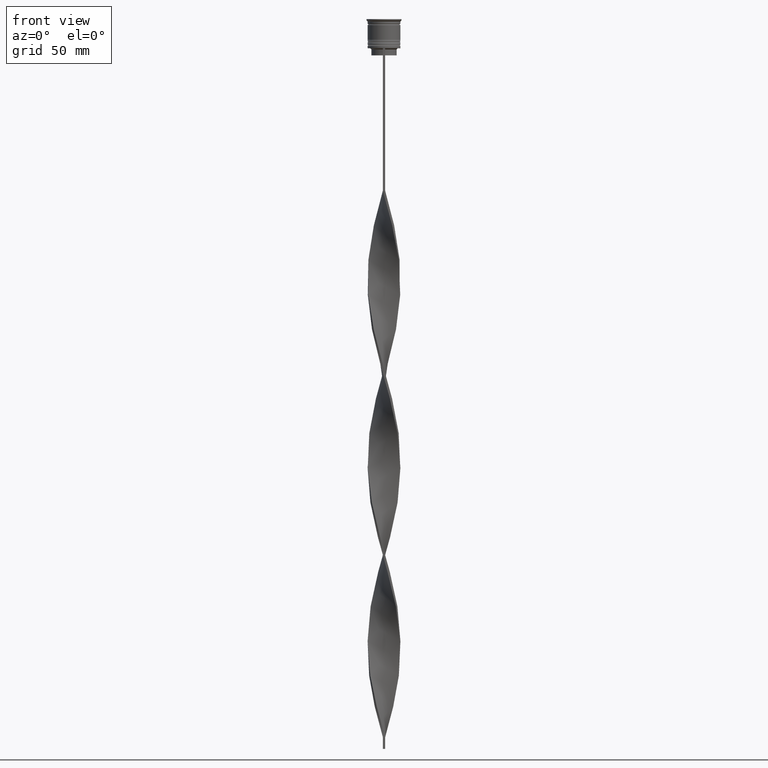
[diagram: clean part render]
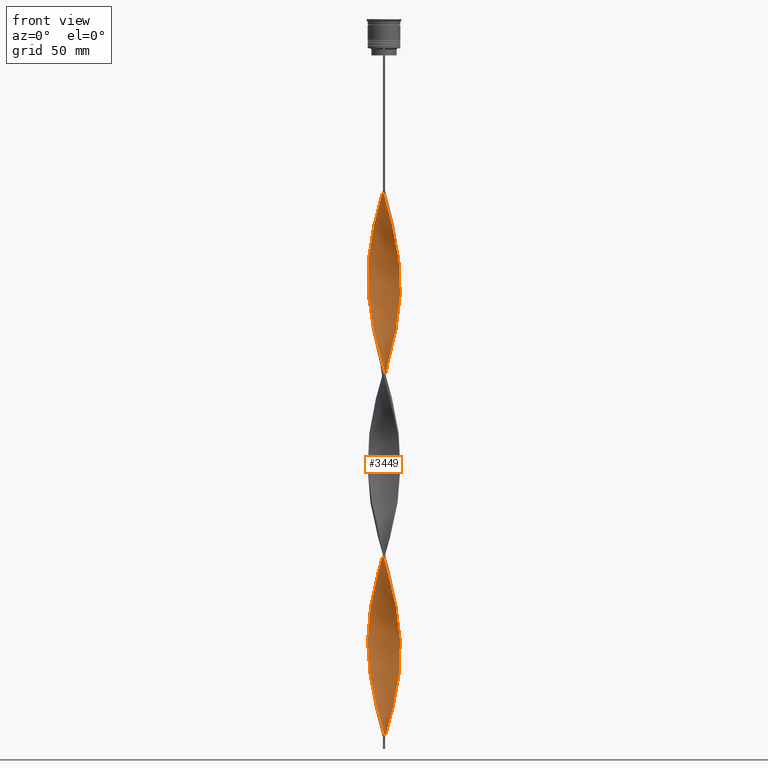
[diagram: same view with one face highlighted and labeled with its STEP entity id]
A machine part, front view. The second image highlights one B-rep face of the part: STEP entity #3449.
In plain terms, the highlighted face is a freeform B-spline surface patch.
Its self-contained STEP definition (entity closure, byte-faithful):
#3 = CARTESIAN_POINT ( 'NONE',  ( -2.732430236082641350, 6.464040919188345669, -163.2000000000000171 ) ) ;
#9 = CARTESIAN_POINT ( 'NONE',  ( -6.679087842547250631, 2.223699182758346549, -258.7500000000001137 ) ) ;
#20 = CARTESIAN_POINT ( 'NONE',  ( 6.835601151645846585, -1.588885425579185107, -108.6000000000000085 ) ) ;
#26 = CARTESIAN_POINT ( 'NONE',  ( 4.178815248312734987, -5.665029177712287201, -91.05000000000001137 ) ) ;
#28 = CARTESIAN_POINT ( 'NONE',  ( -1.687590702477056670, -6.811904111253551442, -299.6999999999999886 ) ) ;
#67 = CARTESIAN_POINT ( 'NONE',  ( -0.5000000000000000000, -6.999999999999997335, -73.50000000000001421 ) ) ;
#72 = CARTESIAN_POINT ( 'NONE',  ( -5.957011586770871503, 3.709988268859839788, -252.9000000000000057 ) ) ;
#92 = CARTESIAN_POINT ( 'NONE',  ( -6.248993995829451364, 3.241161289406944590, -254.8500000000000227 ) ) ;
#98 = CARTESIAN_POINT ( 'NONE',  ( -5.303300858899105741, -4.596194077712556059, -210.0000000000000000 ) ) ;
#112 = CARTESIAN_POINT ( 'NONE',  ( 6.248993995829447812, 3.241161289406941037, -282.1500000000000909 ) ) ;
#119 = CARTESIAN_POINT ( 'NONE',  ( -0.6011970849840458930, 6.992035616686076871, -155.4000000000000057 ) ) ;
#131 = CARTESIAN_POINT ( 'NONE',  ( -3.623436760271012247, 6.010050419448805137, -85.20000000000001705 ) ) ;
#135 = CARTESIAN_POINT ( 'NONE',  ( 6.010050419448798920, -3.623436760271010471, -256.8000000000000114 ) ) ;
#157 = CARTESIAN_POINT ( 'NONE',  ( -6.811904111253551442, 1.687590702477056226, -104.7000000000000171 ) ) ;
#171 = CARTESIAN_POINT ( 'NONE',  ( -5.665029177712290753, 4.178815248312736763, -94.95000000000001705 ) ) ;
#176 = CARTESIAN_POINT ( 'NONE',  ( 0.6011970849840467812, -6.992035616686076871, -233.4000000000000057 ) ) ;
#186 = CARTESIAN_POINT ( 'NONE',  ( -7.000000000000002665, -0.4999999999999995559, -112.5000000000000142 ) ) ;
#193 = CARTESIAN_POINT ( 'NONE',  ( -1.050911947772329436, 6.960649146587694958, -75.45000000000000284 ) ) ;
#205 = CARTESIAN_POINT ( 'NONE',  ( 6.960649146587694069, 1.050911947772331434, -192.4500000000000455 ) ) ;
#211 = CARTESIAN_POINT ( 'NONE',  ( -6.960649146587694958, -1.050911947772328769, -114.4500000000000313 ) ) ;
#231 = CARTESIAN_POINT ( 'NONE',  ( 5.665029177712289865, -4.178815248312741204, -172.9499999999999886 ) ) ;
#238 = CARTESIAN_POINT ( 'NONE',  ( 2.732430236082646235, 6.464040919188350109, -217.7999999999999829 ) ) ;
#252 = CARTESIAN_POINT ( 'NONE',  ( 6.710553156704011535, 2.126858903386037003, -196.3500000000000227 ) ) ;
#257 = CARTESIAN_POINT ( 'NONE',  ( 0.6011970849840492237, 6.992035616686081312, -225.5999999999999943 ) ) ;
#272 = CARTESIAN_POINT ( 'NONE',  ( -1.151482222195766791, -6.944720379959853140, -145.6500000000000341 ) ) ;
#273 = EDGE_CURVE ( 'NONE', #1650, #4003, #2091, .T. ) ;
#277 = CARTESIAN_POINT ( 'NONE',  ( -0.6011970849840483355, -6.992035616686081312, -147.6000000000000227 ) ) ;
#292 = CARTESIAN_POINT ( 'NONE',  ( 3.709988268859836236, -5.957011586770867062, -245.1000000000000227 ) ) ;
#293 = CARTESIAN_POINT ( 'NONE',  ( -4.596194077712556947, 5.303300858899105741, -170.9999999999999716 ) ) ;
#299 = CARTESIAN_POINT ( 'NONE',  ( 6.835601151645846585, -1.588885425579185107, -108.6000000000000085 ) ) ;
#301 = CARTESIAN_POINT ( 'NONE',  ( 6.010050419448806025, 3.623436760271011803, -202.1999999999999886 ) ) ;
#307 = CARTESIAN_POINT ( 'NONE',  ( 6.835601151645851026, 1.588885425579184218, -194.4000000000000057 ) ) ;
#315 = CARTESIAN_POINT ( 'NONE',  ( 4.178815248312734987, -5.665029177712287201, -247.0500000000000114 ) ) ;
#316 = CARTESIAN_POINT ( 'NONE',  ( 2.126858903386041000, 6.710553156704005318, -145.6500000000000341 ) ) ;
#319 = CARTESIAN_POINT ( 'NONE',  ( 1.151482222195764793, -6.944720379959847811, -79.35000000000002274 ) ) ;
#320 = CARTESIAN_POINT ( 'NONE',  ( -3.241161289406944590, -6.248993995829451364, -293.8500000000000227 ) ) ;
#334 = CARTESIAN_POINT ( 'NONE',  ( -6.999999999999997335, 0.5000000000000013323, -190.5000000000000000 ) ) ;
#339 = CARTESIAN_POINT ( 'NONE',  ( 6.502887116878598661, -2.638647218772208092, -104.7000000000000171 ) ) ;
#340 = CARTESIAN_POINT ( 'NONE',  ( -6.502887116878604878, -2.638647218772208980, -276.3000000000000114 ) ) ;
#344 = CARTESIAN_POINT ( 'NONE',  ( -5.013572907112387789, -4.941572540085928722, -286.0500000000000114 ) ) ;
#358 = CARTESIAN_POINT ( 'NONE',  ( -0.6011970849840458930, 6.992035616686076871, -155.4000000000000057 ) ) ;
#379 = CARTESIAN_POINT ( 'NONE',  ( -5.724879761844406723, 4.096437986383643981, -176.8500000000000227 ) ) ;
#380 = CARTESIAN_POINT ( 'NONE',  ( -6.944720379959853140, 1.151482222195766347, -262.6499999999999773 ) ) ;
#386 = CARTESIAN_POINT ( 'NONE',  ( -4.519005263234787684, 5.369226334478397256, -245.1000000000000227 ) ) ;
#393 = CARTESIAN_POINT ( 'NONE',  ( 6.710553156704005318, -2.126858903386040556, -262.6499999999999773 ) ) ;
#403 = CARTESIAN_POINT ( 'NONE',  ( -3.241161289406944590, -6.248993995829451364, -293.8500000000000227 ) ) ;
#409 = CARTESIAN_POINT ( 'NONE',  ( -5.957011586770867950, -3.709988268859835348, -206.0999999999999943 ) ) ;
#422 = CARTESIAN_POINT ( 'NONE',  ( 5.303300858899104853, 4.596194077712556947, -288.0000000000000568 ) ) ;
#430 = CARTESIAN_POINT ( 'NONE',  ( -2.223699182758344328, 6.679087842547247078, -161.2500000000000568 ) ) ;
#434 = LINE ( 'NONE', #1696, #3149 ) ;
#449 = CARTESIAN_POINT ( 'NONE',  ( -0.5000000000000000000, -6.999999999999997335, -229.5000000000000000 ) ) ;
#468 = CARTESIAN_POINT ( 'NONE',  ( 2.638647218772208536, 6.502887116878598661, -299.6999999999999886 ) ) ;
#485 = CARTESIAN_POINT ( 'NONE',  ( -0.5000000000000000000, 7.000000000000002665, -73.50000000000001421 ) ) ;
#498 = CARTESIAN_POINT ( 'NONE',  ( -3.150435534158377848, 6.295221077053198222, -83.25000000000000000 ) ) ;
#504 = CARTESIAN_POINT ( 'NONE',  ( -4.941572540085928722, 5.013572907112387789, -91.05000000000001137 ) ) ;
#513 = CARTESIAN_POINT ( 'NONE',  ( -4.096437986383643981, -5.724879761844405834, -215.8500000000000512 ) ) ;
#516 = CARTESIAN_POINT ( 'NONE',  ( 7.039350853412313036, -0.05091194777233376545, -188.5500000000000114 ) ) ;
#519 = CARTESIAN_POINT ( 'NONE',  ( 6.502887116878598661, -2.638647218772208092, -260.6999999999999886 ) ) ;
#528 = CARTESIAN_POINT ( 'NONE',  ( 3.241161289406941481, -6.248993995829447812, -87.15000000000001990 ) ) ;
#533 = CARTESIAN_POINT ( 'NONE',  ( -2.126858903386041444, 6.710553156704009758, -235.3500000000000227 ) ) ;
#539 = CARTESIAN_POINT ( 'NONE',  ( 4.596194077712562276, 5.303300858899107517, -210.0000000000000000 ) ) ;
#558 = CARTESIAN_POINT ( 'NONE',  ( -5.303300858899105741, -4.596194077712556059, -210.0000000000000000 ) ) ;
#560 = CARTESIAN_POINT ( 'NONE',  ( 6.248993995829453141, -3.241161289406942370, -176.8500000000000227 ) ) ;
#567 = CARTESIAN_POINT ( 'NONE',  ( 6.010050419448806025, 3.623436760271011803, -202.1999999999999886 ) ) ;
#573 = CARTESIAN_POINT ( 'NONE',  ( 6.010050419448798920, -3.623436760271010471, -100.7999999999999972 ) ) ;
#576 = CARTESIAN_POINT ( 'NONE',  ( -2.638647218772209868, -6.502887116878598661, -221.7000000000000171 ) ) ;
#581 = CARTESIAN_POINT ( 'NONE',  ( 4.096437986383647534, -5.724879761844410275, -165.1500000000000341 ) ) ;
#586 = CARTESIAN_POINT ( 'NONE',  ( -6.295221077053197334, -3.150435534158376960, -122.2500000000000142 ) ) ;
#595 = CARTESIAN_POINT ( 'NONE',  ( 5.957011586770867062, 3.709988268859835348, -128.0999999999999943 ) ) ;
#599 = CARTESIAN_POINT ( 'NONE',  ( 6.960649146587689629, -1.050911947772329214, -110.5500000000000114 ) ) ;
#600 = CARTESIAN_POINT ( 'NONE',  ( -2.732430236082645347, -6.464040919188350109, -139.8000000000000114 ) ) ;
#605 = CARTESIAN_POINT ( 'NONE',  ( 6.811904111253551442, -1.687590702477057114, -182.6999999999999886 ) ) ;
#615 = CARTESIAN_POINT ( 'NONE',  ( -1.588885425579185995, -6.835601151645846585, -225.5999999999999943 ) ) ;
#621 = CARTESIAN_POINT ( 'NONE',  ( -5.369226334478392815, 4.519005263234785019, -174.9000000000000057 ) ) ;
#623 = CARTESIAN_POINT ( 'NONE',  ( -6.010050419448805137, -3.623436760271012247, -280.1999999999999886 ) ) ;
#625 =( BOUNDED_CURVE ( )  B_SPLINE_CURVE ( 2, ( #67, #644, #1255, #319, #3797, #3222, #2512, #3185, #3139, #26, #2527, #2214, #3490, #1312, #921, #2174, #339, #663, #299, #599, #2850, #1560, #1599, #960, #1271, #1290, #1908, #2831, #3823, #1619, #2552, #3165, #1000, #982, #1328, #1862, #2233, #3510, #4105, #3202, #1926, #3446, #358, #2891, #2571, #3778, #2194, #3843, #3528, #678, #1945, #3468, #621, #379, #1888, #1641, #1581, #761, #1349, #2670, #1371, #3943, #2628, #3881, #2291, #1060, #1187, #2758, #2464, #2493, #558, #3097, #3444, #513, #3051, #3422, #576, #1470, #3372, #2439, #3116, #3705, #869, #1843, #1860, #4103, #3158, #2565, #292, #315, #2824, #1249, #1576, #2844, #2664, #1101, #3631, #393, #2626, #3898, #2308, #2646, #1444, #3648, #2705, #1281, #950, #112, #1357, #3748, #422, #3175, #913, #3435, #1662, #3129, #3772, #2299, #3459, #1046, #1919 ),
 .UNSPECIFIED., .F., .T. ) 
 B_SPLINE_CURVE_WITH_KNOTS ( ( 3, 2, 2, 2, 2, 2, 2, 2, 2, 2, 2, 2, 2, 2, 2, 2, 2, 2, 2, 2, 2, 2, 2, 2, 2, 2, 2, 2, 2, 2, 2, 2, 2, 2, 2, 2, 2, 2, 2, 2, 2, 2, 2, 2, 2, 2, 2, 2, 2, 2, 2, 2, 2, 2, 2, 2, 2, 2, 2, 2, 3 ),
 ( 0.000000000000000000, 0.01250000000000000243, 0.02500000000000000486, 0.03749999999999999861, 0.05000000000000000971, 0.06250000000000000000, 0.07499999999999999722, 0.08749999999999998057, 0.1000000000000000194, 0.1125000000000000028, 0.1250000000000000000, 0.1375000000000000111, 0.1499999999999999944, 0.1625000000000000056, 0.1749999999999999611, 0.1875000000000000000, 0.2000000000000000389, 0.2124999999999999944, 0.2250000000000000056, 0.2374999999999999611, 0.2500000000000000000, 0.2625000000000000111, 0.2750000000000000222, 0.2874999999999999778, 0.2999999999999999889, 0.3125000000000000000, 0.3250000000000000111, 0.3375000000000000777, 0.3499999999999999223, 0.3624999999999999889, 0.3750000000000000000, 0.3875000000000000111, 0.4000000000000000777, 0.4124999999999999223, 0.4249999999999999889, 0.4375000000000000000, 0.4500000000000000111, 0.4625000000000000777, 0.4749999999999999223, 0.4874999999999999889, 0.5000000000000000000, 0.5124999999999999556, 0.5250000000000000222, 0.5374999999999999778, 0.5500000000000000444, 0.5625000000000000000, 0.5749999999999999556, 0.5875000000000000222, 0.5999999999999999778, 0.6125000000000000444, 0.6250000000000000000, 0.6374999999999999556, 0.6500000000000000222, 0.6624999999999999778, 0.6750000000000001554, 0.6875000000000000000, 0.6999999999999998446, 0.7125000000000000222, 0.7249999999999999778, 0.7375000000000001554, 0.7500000000000000000 ),
 .UNSPECIFIED. ) 
 CURVE ( )  GEOMETRIC_REPRESENTATION_ITEM ( )  RATIONAL_B_SPLINE_CURVE ( ( 1.000000000000000000, 0.9969173337331279638, 1.000000000000000000, 0.9969173337331279638, 1.000000000000000000, 0.9969173337331279638, 1.000000000000000000, 0.9969173337331279638, 1.000000000000000000, 0.9969173337331279638, 1.000000000000000000, 0.9969173337331279638, 1.000000000000000000, 0.9969173337331279638, 1.000000000000000000, 0.9969173337331279638, 1.000000000000000000, 0.9969173337331279638, 1.000000000000000000, 0.9969173337331279638, 1.000000000000000000, 0.9969173337331279638, 1.000000000000000000, 0.9969173337331279638, 1.000000000000000000, 0.9969173337331279638, 1.000000000000000000, 0.9969173337331279638, 1.000000000000000000, 0.9969173337331279638, 1.000000000000000000, 0.9969173337331279638, 1.000000000000000000, 0.9969173337331279638, 1.000000000000000000, 0.9969173337331279638, 1.000000000000000000, 0.9969173337331279638, 1.000000000000000000, 0.9969173337331279638, 1.000000000000000000, 0.9969173337331279638, 1.000000000000000000, 0.9969173337331279638, 1.000000000000000000, 0.9969173337331279638, 1.000000000000000000, 0.9969173337331279638, 1.000000000000000000, 0.9969173337331279638, 1.000000000000000000, 0.9969173337331279638, 1.000000000000000000, 0.9969173337331279638, 1.000000000000000000, 0.9969173337331279638, 1.000000000000000000, 0.9969173337331279638, 1.000000000000000000, 0.9969173337331279638, 1.000000000000000000, 0.9969173337331279638, 1.000000000000000000, 0.9969173337331279638, 1.000000000000000000, 0.9969173337331279638, 1.000000000000000000, 0.9969173337331279638, 1.000000000000000000, 0.9969173337331279638, 1.000000000000000000, 0.9969173337331279638, 1.000000000000000000, 0.9969173337331279638, 1.000000000000000000, 0.9969173337331279638, 1.000000000000000000, 0.9969173337331279638, 1.000000000000000000, 0.9969173337331279638, 1.000000000000000000, 0.9969173337331279638, 1.000000000000000000, 0.9969173337331279638, 1.000000000000000000, 0.9969173337331279638, 1.000000000000000000, 0.9969173337331279638, 1.000000000000000000, 0.9969173337331279638, 1.000000000000000000, 0.9969173337331279638, 1.000000000000000000, 0.9969173337331279638, 1.000000000000000000, 0.9969173337331279638, 1.000000000000000000, 0.9969173337331279638, 1.000000000000000000, 0.9969173337331279638, 1.000000000000000000, 0.9969173337331279638, 1.000000000000000000, 0.9969173337331279638, 1.000000000000000000, 0.9969173337331279638, 1.000000000000000000, 0.9969173337331279638, 1.000000000000000000, 0.9969173337331279638, 1.000000000000000000, 0.9969173337331279638, 1.000000000000000000, 0.9969173337331279638, 1.000000000000000000, 0.9969173337331279638, 1.000000000000000000, 0.9969173337331279638, 1.000000000000000000, 0.9969173337331279638, 1.000000000000000000 ) ) 
 REPRESENTATION_ITEM ( '' )  );
#630 = CARTESIAN_POINT ( 'NONE',  ( -2.732430236082645347, -6.464040919188350109, -139.8000000000000114 ) ) ;
#639 = CARTESIAN_POINT ( 'NONE',  ( 6.960649146587689629, -1.050911947772329214, -110.5500000000000114 ) ) ;
#644 = CARTESIAN_POINT ( 'NONE',  ( 0.05091194777232899843, -7.039350853412307707, -75.45000000000000284 ) ) ;
#645 = CARTESIAN_POINT ( 'NONE',  ( -6.464040919188350109, 2.732430236082644903, -256.8000000000000114 ) ) ;
#650 = CARTESIAN_POINT ( 'NONE',  ( -4.941572540085928722, 5.013572907112387789, -247.0500000000000114 ) ) ;
#663 = CARTESIAN_POINT ( 'NONE',  ( 6.710553156704005318, -2.126858903386040556, -106.6500000000000199 ) ) ;
#666 = CARTESIAN_POINT ( 'NONE',  ( -0.6011970849840483355, -6.992035616686081312, -303.5999999999999659 ) ) ;
#678 = CARTESIAN_POINT ( 'NONE',  ( -4.178815248312733210, 5.665029177712288089, -169.0500000000000114 ) ) ;
#686 = CARTESIAN_POINT ( 'NONE',  ( 0.5000000000000003331, 2.333333333333331261, -307.5000000000000000 ) ) ;
#687 = CARTESIAN_POINT ( 'NONE',  ( -0.05091194777233028906, -7.039350853412313036, -305.5500000000000114 ) ) ;
#700 = CARTESIAN_POINT ( 'NONE',  ( -3.709988268859841121, -5.957011586770870615, -291.8999999999999773 ) ) ;
#706 = CARTESIAN_POINT ( 'NONE',  ( -5.724879761844409387, -4.096437986383647534, -282.1500000000000909 ) ) ;
#710 = CARTESIAN_POINT ( 'NONE',  ( 4.096437986383644869, 5.724879761844404058, -137.8499999999999943 ) ) ;
#723 = CARTESIAN_POINT ( 'NONE',  ( -1.687590702477056670, -6.811904111253551442, -299.6999999999999886 ) ) ;
#729 = CARTESIAN_POINT ( 'NONE',  ( -6.248993995829449588, -3.241161289406938373, -204.1500000000000341 ) ) ;
#750 = CARTESIAN_POINT ( 'NONE',  ( -4.096437986383647534, 5.724879761844409387, -87.15000000000001990 ) ) ;
#761 = CARTESIAN_POINT ( 'NONE',  ( -6.710553156704006206, 2.126858903386038335, -184.6500000000000057 ) ) ;
#769 = CARTESIAN_POINT ( 'NONE',  ( -5.303300858899108405, 4.596194077712561388, -93.00000000000001421 ) ) ;
#773 = CARTESIAN_POINT ( 'NONE',  ( 6.944720379959849588, 1.151482222195764349, -274.3499999999999659 ) ) ;
#791 = CARTESIAN_POINT ( 'NONE',  ( 6.464040919188345669, 2.732430236082642239, -280.1999999999999886 ) ) ;
#796 = CARTESIAN_POINT ( 'NONE',  ( 1.151482222195764793, -6.944720379959848700, -79.35000000000002274 ) ) ;
#799 = EDGE_CURVE ( 'NONE', #2887, #1650, #625, .T. ) ;
#806 = CARTESIAN_POINT ( 'NONE',  ( -6.992035616686082200, 0.6011970849840480025, -108.6000000000000085 ) ) ;
#814 = CARTESIAN_POINT ( 'NONE',  ( 4.519005263234785019, 5.369226334478392815, -291.8999999999999773 ) ) ;
#839 = CARTESIAN_POINT ( 'NONE',  ( -6.992035616686082200, 0.6011970849840480025, -108.6000000000000085 ) ) ;
#844 = CARTESIAN_POINT ( 'NONE',  ( 2.732430236082642239, -6.464040919188345669, -85.20000000000001705 ) ) ;
#851 = CARTESIAN_POINT ( 'NONE',  ( -1.050911947772329436, 6.960649146587694069, -231.4500000000000171 ) ) ;
#855 = CARTESIAN_POINT ( 'NONE',  ( 2.126858903386040556, -6.710553156704011535, -157.3499999999999659 ) ) ;
#869 = CARTESIAN_POINT ( 'NONE',  ( 0.6011970849840467812, -6.992035616686076871, -233.4000000000000057 ) ) ;
#872 = CARTESIAN_POINT ( 'NONE',  ( -0.6011970849840483355, -6.992035616686081312, -147.6000000000000227 ) ) ;
#879 = CARTESIAN_POINT ( 'NONE',  ( -2.638647218772209424, 6.502887116878603990, -237.3000000000000114 ) ) ;
#893 = CARTESIAN_POINT ( 'NONE',  ( 3.709988268859836236, -5.957011586770867062, -89.10000000000000853 ) ) ;
#901 = CARTESIAN_POINT ( 'NONE',  ( 1.687590702477057558, 6.811904111253551442, -221.7000000000000171 ) ) ;
#906 = CARTESIAN_POINT ( 'NONE',  ( 6.679087842547249743, -2.223699182758350101, -180.7500000000000284 ) ) ;
#913 = CARTESIAN_POINT ( 'NONE',  ( 4.519005263234785019, 5.369226334478392815, -291.8999999999999773 ) ) ;
#915 = CARTESIAN_POINT ( 'NONE',  ( -3.709988268859835348, 5.957011586770867062, -167.0999999999999943 ) ) ;
#921 = CARTESIAN_POINT ( 'NONE',  ( 6.010050419448798920, -3.623436760271010471, -100.7999999999999972 ) ) ;
#922 = CARTESIAN_POINT ( 'NONE',  ( 2.638647218772208536, -6.502887116878604878, -159.3000000000000114 ) ) ;
#927 = CARTESIAN_POINT ( 'NONE',  ( 5.665029177712289865, -4.178815248312741204, -172.9499999999999886 ) ) ;
#934 = CARTESIAN_POINT ( 'NONE',  ( -2.126858903386038779, -6.710553156704006206, -223.6500000000000341 ) ) ;
#940 = CARTESIAN_POINT ( 'NONE',  ( -2.223699182758346993, -6.679087842547250631, -297.7499999999999432 ) ) ;
#946 = CARTESIAN_POINT ( 'NONE',  ( 3.150435534158376516, -6.295221077053198222, -161.2500000000000568 ) ) ;
#950 = CARTESIAN_POINT ( 'NONE',  ( 6.464040919188345669, 2.732430236082642239, -280.1999999999999886 ) ) ;
#955 = CARTESIAN_POINT ( 'NONE',  ( 6.502887116878598661, -2.638647218772208092, -104.7000000000000171 ) ) ;
#960 = CARTESIAN_POINT ( 'NONE',  ( 6.944720379959848700, 1.151482222195764349, -118.3500000000000085 ) ) ;
#962 = CARTESIAN_POINT ( 'NONE',  ( -6.960649146587694069, -1.050911947772328769, -270.4500000000000455 ) ) ;
#982 = CARTESIAN_POINT ( 'NONE',  ( 4.096437986383645757, 5.724879761844404946, -137.8499999999999943 ) ) ;
#983 = CARTESIAN_POINT ( 'NONE',  ( -0.6011970849840483355, -6.992035616686081312, -303.5999999999999659 ) ) ;
#1000 = CARTESIAN_POINT ( 'NONE',  ( 4.519005263234785019, 5.369226334478392815, -135.9000000000000341 ) ) ;
#1001 = CARTESIAN_POINT ( 'NONE',  ( -5.369226334478397256, -4.519005263234786796, -284.1000000000000227 ) ) ;
#1029 = CARTESIAN_POINT ( 'NONE',  ( -6.960649146587694958, -1.050911947772328769, -270.4500000000000455 ) ) ;
#1035 = CARTESIAN_POINT ( 'NONE',  ( -6.960649146587689629, 1.050911947772333210, -188.5500000000000398 ) ) ;
#1046 = CARTESIAN_POINT ( 'NONE',  ( 1.050911947772329880, 6.960649146587689629, -305.5500000000000114 ) ) ;
#1052 = CARTESIAN_POINT ( 'NONE',  ( 6.679087842547246190, 2.223699182758344328, -122.2500000000000142 ) ) ;
#1060 = CARTESIAN_POINT ( 'NONE',  ( -6.679087842547245302, -2.223699182758345660, -200.2500000000000000 ) ) ;
#1075 = CARTESIAN_POINT ( 'NONE',  ( -6.248993995829451364, 3.241161289406944590, -98.85000000000002274 ) ) ;
#1094 = CARTESIAN_POINT ( 'NONE',  ( 6.960649146587689629, -1.050911947772329214, -266.5500000000000114 ) ) ;
#1101 = CARTESIAN_POINT ( 'NONE',  ( 6.295221077053192893, -3.150435534158376516, -258.7500000000001137 ) ) ;
#1107 = ORIENTED_EDGE ( 'NONE', *, *, #799, .F. ) ;
#1114 = CARTESIAN_POINT ( 'NONE',  ( 4.096437986383644869, 5.724879761844404058, -293.8500000000000227 ) ) ;
#1126 = CARTESIAN_POINT ( 'NONE',  ( -6.679087842547250631, 2.223699182758346549, -102.7500000000000284 ) ) ;
#1130 = CARTESIAN_POINT ( 'NONE',  ( 6.710553156704005318, -2.126858903386040556, -262.6499999999999773 ) ) ;
#1151 = CARTESIAN_POINT ( 'NONE',  ( 5.303300858899104853, 4.596194077712556947, -288.0000000000000568 ) ) ;
#1170 = CARTESIAN_POINT ( 'NONE',  ( 0.6011970849840492237, 6.992035616686081312, -225.5999999999999943 ) ) ;
#1176 = CARTESIAN_POINT ( 'NONE',  ( 7.000000000000002665, 0.4999999999999987232, -190.5000000000000000 ) ) ;
#1187 = CARTESIAN_POINT ( 'NONE',  ( -6.464040919188346557, -2.732430236082641350, -202.1999999999999886 ) ) ;
#1190 = CARTESIAN_POINT ( 'NONE',  ( 4.596194077712562276, 5.303300858899107517, -210.0000000000000000 ) ) ;
#1196 = CARTESIAN_POINT ( 'NONE',  ( 5.303300858899108405, -4.596194077712562276, -170.9999999999999716 ) ) ;
#1212 = CARTESIAN_POINT ( 'NONE',  ( -6.835601151645851026, -1.588885425579185107, -116.4000000000000057 ) ) ;
#1218 = CARTESIAN_POINT ( 'NONE',  ( 6.502887116878604878, 2.638647218772208092, -198.3000000000000114 ) ) ;
#1238 = CARTESIAN_POINT ( 'NONE',  ( 2.223699182758350545, 6.679087842547248854, -219.7500000000000284 ) ) ;
#1243 = CARTESIAN_POINT ( 'NONE',  ( -6.010050419448805137, -3.623436760271012247, -124.2000000000000028 ) ) ;
#1249 = CARTESIAN_POINT ( 'NONE',  ( 5.013572907112383348, -4.941572540085925169, -250.9500000000000171 ) ) ;
#1250 = CARTESIAN_POINT ( 'NONE',  ( -5.665029177712287201, -4.178815248312735875, -208.0500000000000398 ) ) ;
#1255 = CARTESIAN_POINT ( 'NONE',  ( 0.6011970849840467812, -6.992035616686076871, -77.40000000000000568 ) ) ;
#1256 = CARTESIAN_POINT ( 'NONE',  ( -6.502887116878604878, -2.638647218772208980, -120.2999999999999972 ) ) ;
#1260 = CARTESIAN_POINT ( 'NONE',  ( -2.126858903386041444, 6.710553156704010647, -235.3500000000000227 ) ) ;
#1266 = CARTESIAN_POINT ( 'NONE',  ( 3.150435534158376072, 6.295221077053192005, -141.7499999999999716 ) ) ;
#1271 = CARTESIAN_POINT ( 'NONE',  ( 6.811904111253547001, 1.687590702477053561, -120.2999999999999972 ) ) ;
#1272 = CARTESIAN_POINT ( 'NONE',  ( -3.150435534158377848, 6.295221077053198222, -239.2500000000000284 ) ) ;
#1277 = CARTESIAN_POINT ( 'NONE',  ( -4.178815248312738539, -5.665029177712290753, -289.9500000000001023 ) ) ;
#1281 = CARTESIAN_POINT ( 'NONE',  ( 6.679087842547245302, 2.223699182758343884, -278.2500000000000000 ) ) ;
#1285 = CARTESIAN_POINT ( 'NONE',  ( 5.303300858899104853, 4.596194077712556947, -132.0000000000000000 ) ) ;
#1290 = CARTESIAN_POINT ( 'NONE',  ( 6.679087842547245302, 2.223699182758343884, -122.2500000000000142 ) ) ;
#1312 = CARTESIAN_POINT ( 'NONE',  ( 5.724879761844404946, -4.096437986383645757, -98.85000000000002274 ) ) ;
#1316 = CARTESIAN_POINT ( 'NONE',  ( 0.4999999999999991673, -7.000000000000002665, -307.5000000000000000 ) ) ;
#1328 = CARTESIAN_POINT ( 'NONE',  ( 3.623436760271010915, 6.010050419448798920, -139.8000000000000114 ) ) ;
#1336 = CARTESIAN_POINT ( 'NONE',  ( -6.710553156704011535, -2.126858903386041000, -274.3499999999999659 ) ) ;
#1349 = CARTESIAN_POINT ( 'NONE',  ( -6.835601151645846585, 1.588885425579185773, -186.5999999999999943 ) ) ;
#1357 = CARTESIAN_POINT ( 'NONE',  ( 5.957011586770867062, 3.709988268859835348, -284.1000000000000227 ) ) ;
#1363 = CARTESIAN_POINT ( 'NONE',  ( -1.151482222195764127, 6.944720379959849588, -157.3499999999999659 ) ) ;
#1371 = CARTESIAN_POINT ( 'NONE',  ( -6.999999999999997335, 0.5000000000000013323, -190.5000000000000000 ) ) ;
#1383 = CARTESIAN_POINT ( 'NONE',  ( -1.687590702477053117, 6.811904111253547001, -159.3000000000000114 ) ) ;
#1393 = CARTESIAN_POINT ( 'NONE',  ( -4.096437986383647534, 5.724879761844410275, -87.15000000000001990 ) ) ;
#1397 = CARTESIAN_POINT ( 'NONE',  ( 4.941572540085925169, 5.013572907112384236, -289.9500000000001023 ) ) ;
#1420 = CARTESIAN_POINT ( 'NONE',  ( -7.039350853412313036, 0.05091194777232976171, -110.5500000000000114 ) ) ;
#1435 = CARTESIAN_POINT ( 'NONE',  ( -5.957011586770871503, 3.709988268859839788, -96.90000000000001990 ) ) ;
#1439 = CARTESIAN_POINT ( 'NONE',  ( 4.596194077712557835, -5.303300858899104853, -249.0000000000000000 ) ) ;
#1444 = CARTESIAN_POINT ( 'NONE',  ( 6.992035616686076871, 0.6011970849840463371, -272.3999999999999773 ) ) ;
#1459 = CARTESIAN_POINT ( 'NONE',  ( -6.679087842547251519, 2.223699182758346549, -102.7500000000000284 ) ) ;
#1470 = CARTESIAN_POINT ( 'NONE',  ( -2.126858903386038779, -6.710553156704006206, -223.6500000000000341 ) ) ;
#1473 = CARTESIAN_POINT ( 'NONE',  ( -3.709988268859841121, -5.957011586770870615, -135.9000000000000341 ) ) ;
#1481 = CARTESIAN_POINT ( 'NONE',  ( -4.596194077712561388, -5.303300858899108405, -132.0000000000000000 ) ) ;
#1489 = CARTESIAN_POINT ( 'NONE',  ( 5.013572907112384236, -4.941572540085925169, -94.95000000000001705 ) ) ;
#1499 = CARTESIAN_POINT ( 'NONE',  ( 3.150435534158376960, -6.295221077053199110, -161.2500000000000284 ) ) ;
#1503 = CARTESIAN_POINT ( 'NONE',  ( 1.687590702477057558, 6.811904111253551442, -221.7000000000000171 ) ) ;
#1518 = CARTESIAN_POINT ( 'NONE',  ( 6.295221077053197334, 3.150435534158379625, -200.2500000000000000 ) ) ;
#1523 = CARTESIAN_POINT ( 'NONE',  ( 6.295221077053196446, 3.150435534158379181, -200.2500000000000000 ) ) ;
#1529 = CARTESIAN_POINT ( 'NONE',  ( 2.223699182758344328, -6.679087842547246190, -83.25000000000000000 ) ) ;
#1534 = CARTESIAN_POINT ( 'NONE',  ( 4.941572540085927834, -5.013572907112387789, -169.0500000000000114 ) ) ;
#1540 = CARTESIAN_POINT ( 'NONE',  ( -6.502887116878604878, -2.638647218772208980, -120.2999999999999972 ) ) ;
#1553 = CARTESIAN_POINT ( 'NONE',  ( -6.679087842547245302, -2.223699182758345660, -200.2500000000000000 ) ) ;
#1560 = CARTESIAN_POINT ( 'NONE',  ( 7.039350853412307707, 0.05091194777232845026, -114.4500000000000171 ) ) ;
#1561 = CARTESIAN_POINT ( 'NONE',  ( 5.369226334478399032, 4.519005263234785907, -206.0999999999999943 ) ) ;
#1567 = CARTESIAN_POINT ( 'NONE',  ( -0.5000000000000000000, 7.000000000000002665, -229.5000000000000000 ) ) ;
#1576 = CARTESIAN_POINT ( 'NONE',  ( 5.369226334478393703, -4.519005263234784131, -252.9000000000000057 ) ) ;
#1577 = CARTESIAN_POINT ( 'NONE',  ( -7.039350853412307707, -0.05091194777233083030, -192.4500000000000171 ) ) ;
#1581 = CARTESIAN_POINT ( 'NONE',  ( -6.502887116878598661, 2.638647218772208980, -182.6999999999999886 ) ) ;
#1583 = CARTESIAN_POINT ( 'NONE',  ( -5.665029177712290753, 4.178815248312736763, -250.9500000000000171 ) ) ;
#1594 = CARTESIAN_POINT ( 'NONE',  ( -6.811904111253547001, -1.687590702477052673, -198.3000000000000114 ) ) ;
#1599 = CARTESIAN_POINT ( 'NONE',  ( 6.992035616686076871, 0.6011970849840463371, -116.4000000000000057 ) ) ;
#1605 = CARTESIAN_POINT ( 'NONE',  ( -3.709988268859841121, -5.957011586770870615, -291.8999999999999773 ) ) ;
#1619 = CARTESIAN_POINT ( 'NONE',  ( 5.665029177712287201, 4.178815248312733210, -130.0500000000000114 ) ) ;
#1628 = CARTESIAN_POINT ( 'NONE',  ( 0.5000000000000008882, 6.999999999999997335, -307.5000000000000000 ) ) ;
#1629 = CARTESIAN_POINT ( 'NONE',  ( -1.151482222195767013, -6.944720379959854029, -301.6500000000000341 ) ) ;
#1641 = CARTESIAN_POINT ( 'NONE',  ( -6.295221077053191117, 3.150435534158380069, -180.7500000000000568 ) ) ;
#1646 = CARTESIAN_POINT ( 'NONE',  ( -6.464040919188350109, 2.732430236082644903, -256.8000000000000114 ) ) ;
#1650 = VERTEX_POINT ( 'NONE', #3515 ) ;
#1662 = CARTESIAN_POINT ( 'NONE',  ( 3.623436760271010915, 6.010050419448798920, -295.8000000000000114 ) ) ;
#1663 = CARTESIAN_POINT ( 'NONE',  ( -6.502887116878604878, -2.638647218772208980, -276.3000000000000114 ) ) ;
#1668 = CARTESIAN_POINT ( 'NONE',  ( 6.992035616686076871, 0.6011970849840463371, -116.4000000000000057 ) ) ;
#1692 = CARTESIAN_POINT ( 'NONE',  ( 1.050911947772329880, 6.960649146587689629, -149.5500000000000682 ) ) ;
#1696 = CARTESIAN_POINT ( 'NONE',  ( -0.5000000000000000000, -6.999999999999997335, -73.50000000000001421 ) ) ;
#1707 = CARTESIAN_POINT ( 'NONE',  ( 5.724879761844404058, -4.096437986383644869, -254.8500000000000227 ) ) ;
#1725 = CARTESIAN_POINT ( 'NONE',  ( -4.519005263234787684, 5.369226334478397256, -89.10000000000000853 ) ) ;
#1747 = CARTESIAN_POINT ( 'NONE',  ( -2.638647218772209424, 6.502887116878603990, -81.30000000000001137 ) ) ;
#1764 = CARTESIAN_POINT ( 'NONE',  ( -5.303300858899108405, 4.596194077712561388, -93.00000000000001421 ) ) ;
#1779 = CARTESIAN_POINT ( 'NONE',  ( 6.835601151645851026, 1.588885425579184218, -194.4000000000000057 ) ) ;
#1782 = CARTESIAN_POINT ( 'NONE',  ( -0.5000000000000000000, -6.999999999999997335, -73.50000000000001421 ) ) ;
#1784 = CARTESIAN_POINT ( 'NONE',  ( 6.248993995829447812, 3.241161289406941481, -282.1500000000000909 ) ) ;
#1793 = CARTESIAN_POINT ( 'NONE',  ( 4.178815248312734987, -5.665029177712287201, -91.05000000000001137 ) ) ;
#1800 = CARTESIAN_POINT ( 'NONE',  ( -2.223699182758346993, -6.679087842547250631, -141.7500000000000000 ) ) ;
#1806 = CARTESIAN_POINT ( 'NONE',  ( 4.178815248312741204, 5.665029177712288977, -211.9499999999999886 ) ) ;
#1824 = CARTESIAN_POINT ( 'NONE',  ( 6.992035616686081312, -0.6011970849840487796, -186.5999999999999943 ) ) ;
#1829 = CARTESIAN_POINT ( 'NONE',  ( -4.178815248312738539, -5.665029177712290753, -133.9500000000000455 ) ) ;
#1839 = CARTESIAN_POINT ( 'NONE',  ( 6.295221077053192005, -3.150435534158376072, -102.7500000000000284 ) ) ;
#1843 = CARTESIAN_POINT ( 'NONE',  ( 1.151482222195764793, -6.944720379959847811, -235.3500000000000227 ) ) ;
#1846 = CARTESIAN_POINT ( 'NONE',  ( 5.013572907112385124, 4.941572540085928722, -208.0500000000000398 ) ) ;
#1852 = CARTESIAN_POINT ( 'NONE',  ( -3.709988268859841121, -5.957011586770870615, -135.9000000000000341 ) ) ;
#1858 = CARTESIAN_POINT ( 'NONE',  ( -3.623436760271011803, -6.010050419448798920, -217.7999999999999829 ) ) ;
#1860 = CARTESIAN_POINT ( 'NONE',  ( 1.687590702477054005, -6.811904111253546112, -237.3000000000000114 ) ) ;
#1862 = CARTESIAN_POINT ( 'NONE',  ( 3.150435534158376516, 6.295221077053192893, -141.7500000000000000 ) ) ;
#1863 = CARTESIAN_POINT ( 'NONE',  ( -0.05091194777233028906, -7.039350853412313036, -149.5500000000000398 ) ) ;
#1868 = CARTESIAN_POINT ( 'NONE',  ( -1.687590702477056670, -6.811904111253551442, -143.6999999999999886 ) ) ;
#1880 = CARTESIAN_POINT ( 'NONE',  ( 3.623436760271010915, 6.010050419448798920, -139.8000000000000114 ) ) ;
#1888 = CARTESIAN_POINT ( 'NONE',  ( -6.010050419448798920, 3.623436760271011359, -178.8000000000000114 ) ) ;
#1889 = CARTESIAN_POINT ( 'NONE',  ( -5.303300858899108405, 4.596194077712561388, -249.0000000000000000 ) ) ;
#1893 = CARTESIAN_POINT ( 'NONE',  ( 7.039350853412313036, -0.05091194777233376545, -188.5500000000000398 ) ) ;
#1902 = CARTESIAN_POINT ( 'NONE',  ( -6.835601151645846585, 1.588885425579185773, -186.5999999999999943 ) ) ;
#1908 = CARTESIAN_POINT ( 'NONE',  ( 6.464040919188345669, 2.732430236082642239, -124.2000000000000028 ) ) ;
#1909 = CARTESIAN_POINT ( 'NONE',  ( -0.05091194777233028906, -7.039350853412313036, -305.5500000000000114 ) ) ;
#1913 = CARTESIAN_POINT ( 'NONE',  ( -6.295221077053197334, -3.150435534158376960, -278.2500000000000000 ) ) ;
#1919 = CARTESIAN_POINT ( 'NONE',  ( 0.5000000000000008882, 6.999999999999997335, -307.5000000000000000 ) ) ;
#1926 = CARTESIAN_POINT ( 'NONE',  ( 0.5000000000000008882, 6.999999999999997335, -151.5000000000000284 ) ) ;
#1927 = CARTESIAN_POINT ( 'NONE',  ( -3.623436760271012247, 6.010050419448805137, -241.1999999999999886 ) ) ;
#1945 = CARTESIAN_POINT ( 'NONE',  ( -4.596194077712556947, 5.303300858899105741, -170.9999999999999716 ) ) ;
#1953 = CARTESIAN_POINT ( 'NONE',  ( 0.4999999999999991673, -7.000000000000002665, -307.5000000000000000 ) ) ;
#1977 = CARTESIAN_POINT ( 'NONE',  ( -6.295221077053190228, 3.150435534158379625, -180.7500000000000284 ) ) ;
#1990 = CARTESIAN_POINT ( 'NONE',  ( -6.679087842547251519, 2.223699182758346549, -258.7500000000001137 ) ) ;
#1996 = CARTESIAN_POINT ( 'NONE',  ( -4.519005263234785907, -5.369226334478392815, -213.9000000000000057 ) ) ;
#2015 = CARTESIAN_POINT ( 'NONE',  ( -5.665029177712290753, 4.178815248312736763, -94.95000000000001705 ) ) ;
#2029 = CARTESIAN_POINT ( 'NONE',  ( -6.464040919188350109, 2.732430236082644903, -100.7999999999999972 ) ) ;
#2034 = CARTESIAN_POINT ( 'NONE',  ( 5.957011586770867062, 3.709988268859835348, -284.1000000000000227 ) ) ;
#2040 = EDGE_CURVE ( 'NONE', #2887, #4051, #434, .T. ) ;
#2048 = CARTESIAN_POINT ( 'NONE',  ( 3.623436760271010915, 6.010050419448798920, -295.8000000000000114 ) ) ;
#2053 = CARTESIAN_POINT ( 'NONE',  ( 0.6011970849840467812, -6.992035616686076871, -77.40000000000000568 ) ) ;
#2063 = CARTESIAN_POINT ( 'NONE',  ( -7.039350853412313036, 0.05091194777232975477, -110.5500000000000114 ) ) ;
#2070 = CARTESIAN_POINT ( 'NONE',  ( 0.05091194777232899149, -7.039350853412307707, -231.4500000000000455 ) ) ;
#2082 = CARTESIAN_POINT ( 'NONE',  ( -4.596194077712561388, -5.303300858899108405, -132.0000000000000000 ) ) ;
#2088 = CARTESIAN_POINT ( 'NONE',  ( 1.588885425579185329, 6.835601151645846585, -303.5999999999999659 ) ) ;
#2091 = B_SPLINE_CURVE_WITH_KNOTS ( 'NONE', 3,
 ( #1628, #686, #2855, #1953 ),
 .UNSPECIFIED., .F., .F.,
 ( 4, 4 ),
 ( 0.000000000000000000, 1.000000000000000000 ),
 .UNSPECIFIED. ) ;
#2104 = CARTESIAN_POINT ( 'NONE',  ( -3.241161289406944590, -6.248993995829451364, -137.8499999999999943 ) ) ;
#2108 = CARTESIAN_POINT ( 'NONE',  ( 5.724879761844411163, 4.096437986383643981, -204.1500000000000341 ) ) ;
#2126 = CARTESIAN_POINT ( 'NONE',  ( 1.050911947772328547, -6.960649146587694069, -153.4500000000000171 ) ) ;
#2134 = CARTESIAN_POINT ( 'NONE',  ( -3.623436760271012247, 6.010050419448805137, -241.1999999999999886 ) ) ;
#2148 = CARTESIAN_POINT ( 'NONE',  ( 5.369226334478393703, -4.519005263234784131, -96.90000000000001990 ) ) ;
#2156 = CARTESIAN_POINT ( 'NONE',  ( 0.05091194777233409158, 7.039350853412313036, -227.5500000000000114 ) ) ;
#2160 = CARTESIAN_POINT ( 'NONE',  ( 6.248993995829453141, -3.241161289406942370, -176.8500000000000512 ) ) ;
#2161 = EDGE_LOOP ( 'NONE', ( #3427, #3277, #3948, #1107 ) ) ;
#2168 = CARTESIAN_POINT ( 'NONE',  ( -4.941572540085927834, -5.013572907112379795, -211.9499999999999886 ) ) ;
#2174 = CARTESIAN_POINT ( 'NONE',  ( 6.295221077053192893, -3.150435534158376516, -102.7500000000000284 ) ) ;
#2175 = CARTESIAN_POINT ( 'NONE',  ( -1.687590702477056670, -6.811904111253551442, -143.6999999999999886 ) ) ;
#2181 = CARTESIAN_POINT ( 'NONE',  ( 6.464040919188350109, -2.732430236082645791, -178.8000000000000114 ) ) ;
#2189 = CARTESIAN_POINT ( 'NONE',  ( -1.050911947772333654, -6.960649146587689629, -227.5499999999999829 ) ) ;
#2194 = CARTESIAN_POINT ( 'NONE',  ( -2.732430236082641350, 6.464040919188345669, -163.2000000000000171 ) ) ;
#2201 = CARTESIAN_POINT ( 'NONE',  ( -5.013572907112387789, -4.941572540085928722, -130.0499999999999829 ) ) ;
#2209 = CARTESIAN_POINT ( 'NONE',  ( 2.638647218772208536, 6.502887116878598661, -143.6999999999999886 ) ) ;
#2214 = CARTESIAN_POINT ( 'NONE',  ( 5.013572907112383348, -4.941572540085925169, -94.95000000000001705 ) ) ;
#2215 = CARTESIAN_POINT ( 'NONE',  ( -7.000000000000002665, -0.4999999999999995559, -268.4999999999999432 ) ) ;
#2220 = CARTESIAN_POINT ( 'NONE',  ( -6.010050419448805137, -3.623436760271012247, -280.1999999999999886 ) ) ;
#2233 = CARTESIAN_POINT ( 'NONE',  ( 2.638647218772208536, 6.502887116878598661, -143.6999999999999886 ) ) ;
#2251 = CARTESIAN_POINT ( 'NONE',  ( -1.151482222195766791, -6.944720379959853140, -301.6500000000000341 ) ) ;
#2286 = CARTESIAN_POINT ( 'NONE',  ( -6.992035616686076871, -0.6011970849840454489, -194.4000000000000057 ) ) ;
#2291 = CARTESIAN_POINT ( 'NONE',  ( -6.811904111253547001, -1.687590702477052673, -198.3000000000000114 ) ) ;
#2299 = CARTESIAN_POINT ( 'NONE',  ( 2.126858903386041000, 6.710553156704005318, -301.6500000000000341 ) ) ;
#2305 = CARTESIAN_POINT ( 'NONE',  ( -5.369226334478392815, 4.519005263234785019, -174.9000000000000057 ) ) ;
#2308 = CARTESIAN_POINT ( 'NONE',  ( 6.999999999999997335, -0.5000000000000004441, -268.4999999999999432 ) ) ;
#2311 = CARTESIAN_POINT ( 'NONE',  ( 0.4999999999999991673, -7.000000000000002665, -307.5000000000000000 ) ) ;
#2318 = CARTESIAN_POINT ( 'NONE',  ( -0.5000000000000000000, 7.000000000000002665, -73.50000000000001421 ) ) ;
#2324 = CARTESIAN_POINT ( 'NONE',  ( 4.178815248312734987, -5.665029177712287201, -247.0500000000000114 ) ) ;
#2350 = CARTESIAN_POINT ( 'NONE',  ( 1.050911947772329880, 6.960649146587689629, -305.5500000000000114 ) ) ;
#2364 = CARTESIAN_POINT ( 'NONE',  ( -1.588885425579185551, 6.835601151645851026, -77.40000000000000568 ) ) ;
#2369 = CARTESIAN_POINT ( 'NONE',  ( 2.126858903386041000, 6.710553156704005318, -301.6500000000000341 ) ) ;
#2380 = CARTESIAN_POINT ( 'NONE',  ( -6.811904111253551442, 1.687590702477056226, -104.7000000000000171 ) ) ;
#2384 = CARTESIAN_POINT ( 'NONE',  ( 5.369226334478393703, -4.519005263234784131, -252.9000000000000057 ) ) ;
#2407 = CARTESIAN_POINT ( 'NONE',  ( -6.464040919188350109, 2.732430236082644903, -100.7999999999999972 ) ) ;
#2422 = CARTESIAN_POINT ( 'NONE',  ( 6.679087842547248854, -2.223699182758350101, -180.7500000000000568 ) ) ;
#2428 = CARTESIAN_POINT ( 'NONE',  ( 6.944720379959854917, -1.151482222195764349, -184.6500000000000057 ) ) ;
#2439 = CARTESIAN_POINT ( 'NONE',  ( -1.050911947772333876, -6.960649146587689629, -227.5500000000000114 ) ) ;
#2442 = CARTESIAN_POINT ( 'NONE',  ( -5.369226334478397256, -4.519005263234786796, -128.0999999999999943 ) ) ;
#2447 = CARTESIAN_POINT ( 'NONE',  ( 0.05091194777233409852, 7.039350853412313036, -227.5499999999999829 ) ) ;
#2464 = CARTESIAN_POINT ( 'NONE',  ( -5.957011586770867950, -3.709988268859835348, -206.0999999999999943 ) ) ;
#2467 = CARTESIAN_POINT ( 'NONE',  ( 2.126858903386040556, -6.710553156704010647, -157.3499999999999943 ) ) ;
#2473 = CARTESIAN_POINT ( 'NONE',  ( 3.709988268859842009, 5.957011586770870615, -213.9000000000000057 ) ) ;
#2493 = CARTESIAN_POINT ( 'NONE',  ( -5.665029177712287201, -4.178815248312735875, -208.0500000000000398 ) ) ;
#2496 = CARTESIAN_POINT ( 'NONE',  ( 1.151482222195764571, 6.944720379959854029, -223.6500000000000341 ) ) ;
#2500 = CARTESIAN_POINT ( 'NONE',  ( -5.369226334478397256, -4.519005263234786796, -128.0999999999999943 ) ) ;
#2506 = CARTESIAN_POINT ( 'NONE',  ( -3.150435534158380069, -6.295221077053190228, -219.7500000000000284 ) ) ;
#2512 = CARTESIAN_POINT ( 'NONE',  ( 2.732430236082642239, -6.464040919188345669, -85.20000000000001705 ) ) ;
#2513 = CARTESIAN_POINT ( 'NONE',  ( -5.013572907112386901, -4.941572540085927834, -130.0500000000000114 ) ) ;
#2517 = CARTESIAN_POINT ( 'NONE',  ( -3.150435534158377404, 6.295221077053197334, -239.2500000000000000 ) ) ;
#2523 = CARTESIAN_POINT ( 'NONE',  ( -0.05091194777232811719, 7.039350853412307707, -153.4499999999999886 ) ) ;
#2527 = CARTESIAN_POINT ( 'NONE',  ( 4.596194077712557835, -5.303300858899104853, -93.00000000000001421 ) ) ;
#2529 = CARTESIAN_POINT ( 'NONE',  ( -7.039350853412313036, 0.05091194777232975477, -266.5500000000000114 ) ) ;
#2536 = CARTESIAN_POINT ( 'NONE',  ( -5.665029177712290753, 4.178815248312736763, -250.9499999999999602 ) ) ;
#2547 = CARTESIAN_POINT ( 'NONE',  ( 0.5000000000000008882, 6.999999999999997335, -151.5000000000000284 ) ) ;
#2552 = CARTESIAN_POINT ( 'NONE',  ( 5.303300858899104853, 4.596194077712556947, -132.0000000000000000 ) ) ;
#2553 = CARTESIAN_POINT ( 'NONE',  ( -5.957011586770871503, 3.709988268859839788, -252.9000000000000057 ) ) ;
#2565 = CARTESIAN_POINT ( 'NONE',  ( 3.241161289406941037, -6.248993995829447812, -243.1500000000000057 ) ) ;
#2571 = CARTESIAN_POINT ( 'NONE',  ( -1.687590702477053117, 6.811904111253547001, -159.3000000000000114 ) ) ;
#2572 = CARTESIAN_POINT ( 'NONE',  ( -6.992035616686082200, 0.6011970849840480025, -264.6000000000000227 ) ) ;
#2576 = CARTESIAN_POINT ( 'NONE',  ( -4.096437986383647534, 5.724879761844409387, -243.1500000000000057 ) ) ;
#2587 = CARTESIAN_POINT ( 'NONE',  ( -6.295221077053198222, -3.150435534158377404, -278.2500000000000000 ) ) ;
#2610 = CARTESIAN_POINT ( 'NONE',  ( -4.941572540085927834, 5.013572907112386901, -247.0500000000000114 ) ) ;
#2617 = CARTESIAN_POINT ( 'NONE',  ( -2.223699182758346993, -6.679087842547251519, -297.7499999999999432 ) ) ;
#2623 = CARTESIAN_POINT ( 'NONE',  ( -6.944720379959850476, -1.151482222195760574, -196.3500000000000227 ) ) ;
#2624 = DIRECTION ( 'NONE',  ( 0.000000000000000000, 1.000000000000000000, 0.000000000000000000 ) ) ;
#2626 = CARTESIAN_POINT ( 'NONE',  ( 6.835601151645846585, -1.588885425579185107, -264.6000000000000227 ) ) ;
#2628 = CARTESIAN_POINT ( 'NONE',  ( -6.992035616686076871, -0.6011970849840454489, -194.4000000000000057 ) ) ;
#2643 = CARTESIAN_POINT ( 'NONE',  ( -1.588885425579185551, 6.835601151645851026, -77.40000000000000568 ) ) ;
#2646 = CARTESIAN_POINT ( 'NONE',  ( 7.039350853412307707, 0.05091194777232845026, -270.4500000000000455 ) ) ;
#2655 = CARTESIAN_POINT ( 'NONE',  ( -4.519005263234787684, 5.369226334478397256, -89.10000000000000853 ) ) ;
#2659 = CARTESIAN_POINT ( 'NONE',  ( 3.150435534158376072, 6.295221077053192005, -297.7499999999999432 ) ) ;
#2664 = CARTESIAN_POINT ( 'NONE',  ( 6.010050419448798920, -3.623436760271010471, -256.8000000000000114 ) ) ;
#2670 = CARTESIAN_POINT ( 'NONE',  ( -6.960649146587689629, 1.050911947772333432, -188.5500000000000114 ) ) ;
#2685 = CARTESIAN_POINT ( 'NONE',  ( 2.732430236082642239, -6.464040919188345669, -241.1999999999999886 ) ) ;
#2701 = CARTESIAN_POINT ( 'NONE',  ( 6.992035616686076871, 0.6011970849840463371, -272.3999999999999773 ) ) ;
#2705 = CARTESIAN_POINT ( 'NONE',  ( 6.811904111253547001, 1.687590702477053561, -276.3000000000000114 ) ) ;
#2721 = CARTESIAN_POINT ( 'NONE',  ( 3.241161289406941481, -6.248993995829447812, -243.1500000000000057 ) ) ;
#2731 = CARTESIAN_POINT ( 'NONE',  ( 0.05091194777232899149, -7.039350853412307707, -75.45000000000000284 ) ) ;
#2740 = CARTESIAN_POINT ( 'NONE',  ( 6.502887116878604878, 2.638647218772208092, -198.3000000000000114 ) ) ;
#2746 = CARTESIAN_POINT ( 'NONE',  ( 6.960649146587694958, 1.050911947772331434, -192.4500000000000171 ) ) ;
#2758 = CARTESIAN_POINT ( 'NONE',  ( -6.248993995829449588, -3.241161289406937929, -204.1500000000000341 ) ) ;
#2762 = CARTESIAN_POINT ( 'NONE',  ( 1.588885425579184218, -6.835601151645851026, -155.4000000000000057 ) ) ;
#2768 = CARTESIAN_POINT ( 'NONE',  ( -2.223699182758346993, -6.679087842547251519, -141.7499999999999716 ) ) ;
#2784 = CARTESIAN_POINT ( 'NONE',  ( 2.732430236082646235, 6.464040919188350109, -217.7999999999999829 ) ) ;
#2790 = CARTESIAN_POINT ( 'NONE',  ( 1.588885425579184218, -6.835601151645851026, -155.4000000000000057 ) ) ;
#2808 = CARTESIAN_POINT ( 'NONE',  ( 3.709988268859842009, 5.957011586770870615, -213.9000000000000057 ) ) ;
#2814 = CARTESIAN_POINT ( 'NONE',  ( 6.992035616686081312, -0.6011970849840487796, -186.5999999999999943 ) ) ;
#2824 = CARTESIAN_POINT ( 'NONE',  ( 4.596194077712557835, -5.303300858899104853, -249.0000000000000000 ) ) ;
#2825 = CARTESIAN_POINT ( 'NONE',  ( 6.999999999999997335, -0.5000000000000004441, -112.5000000000000142 ) ) ;
#2831 = CARTESIAN_POINT ( 'NONE',  ( 6.248993995829447812, 3.241161289406941037, -126.1500000000000057 ) ) ;
#2832 = CARTESIAN_POINT ( 'NONE',  ( -5.724879761844410275, -4.096437986383647534, -126.1500000000000057 ) ) ;
#2837 = CARTESIAN_POINT ( 'NONE',  ( -1.588885425579185551, 6.835601151645851026, -233.4000000000000057 ) ) ;
#2844 = CARTESIAN_POINT ( 'NONE',  ( 5.724879761844404946, -4.096437986383645757, -254.8500000000000227 ) ) ;
#2845 = CARTESIAN_POINT ( 'NONE',  ( 6.710553156704005318, -2.126858903386040556, -106.6500000000000199 ) ) ;
#2850 = CARTESIAN_POINT ( 'NONE',  ( 6.999999999999997335, -0.5000000000000004441, -112.5000000000000142 ) ) ;
#2851 = CARTESIAN_POINT ( 'NONE',  ( -6.811904111253551442, 1.687590702477056226, -260.6999999999999886 ) ) ;
#2855 = CARTESIAN_POINT ( 'NONE',  ( 0.4999999999999996669, -2.333333333333336590, -307.5000000000000000 ) ) ;
#2856 = CARTESIAN_POINT ( 'NONE',  ( -2.732430236082645347, -6.464040919188350109, -295.8000000000000114 ) ) ;
#2861 = CARTESIAN_POINT ( 'NONE',  ( 6.944720379959849588, 1.151482222195764349, -118.3500000000000085 ) ) ;
#2876 = CARTESIAN_POINT ( 'NONE',  ( -7.039350853412313036, 0.05091194777232976171, -266.5500000000000114 ) ) ;
#2887 = VERTEX_POINT ( 'NONE', #1782 ) ;
#2891 = CARTESIAN_POINT ( 'NONE',  ( -1.151482222195763905, 6.944720379959848700, -157.3499999999999943 ) ) ;
#2906 = CARTESIAN_POINT ( 'NONE',  ( -2.732430236082645347, -6.464040919188350109, -295.8000000000000114 ) ) ;
#2910 = CARTESIAN_POINT ( 'NONE',  ( -6.944720379959854029, 1.151482222195766569, -262.6499999999999773 ) ) ;
#2922 = CARTESIAN_POINT ( 'NONE',  ( -6.248993995829451364, 3.241161289406944590, -254.8500000000000227 ) ) ;
#2929 = CARTESIAN_POINT ( 'NONE',  ( -5.303300858899108405, 4.596194077712561388, -249.0000000000000000 ) ) ;
#2937 = CARTESIAN_POINT ( 'NONE',  ( -4.178815248312733210, 5.665029177712288089, -169.0499999999999829 ) ) ;
#2959 = CARTESIAN_POINT ( 'NONE',  ( 6.248993995829447812, 3.241161289406941481, -126.1500000000000199 ) ) ;
#2977 = CARTESIAN_POINT ( 'NONE',  ( -2.126858903386041444, 6.710553156704009758, -79.35000000000002274 ) ) ;
#2980 = CARTESIAN_POINT ( 'NONE',  ( 1.151482222195764793, -6.944720379959848700, -235.3500000000000227 ) ) ;
#3001 = CARTESIAN_POINT ( 'NONE',  ( 6.811904111253547001, 1.687590702477053561, -276.3000000000000114 ) ) ;
#3025 = CARTESIAN_POINT ( 'NONE',  ( 6.999999999999997335, -0.5000000000000004441, -268.4999999999999432 ) ) ;
#3036 = CARTESIAN_POINT ( 'NONE',  ( -1.050911947772329436, 6.960649146587694069, -75.45000000000000284 ) ) ;
#3041 = CARTESIAN_POINT ( 'NONE',  ( -5.957011586770871503, 3.709988268859839788, -96.90000000000001990 ) ) ;
#3048 = FACE_OUTER_BOUND ( 'NONE', #2161, .T. ) ;
#3051 = CARTESIAN_POINT ( 'NONE',  ( -3.623436760271011803, -6.010050419448798920, -217.7999999999999829 ) ) ;
#3054 = CARTESIAN_POINT ( 'NONE',  ( 3.241161289406943258, 6.248993995829452253, -215.8500000000000512 ) ) ;
#3060 = CARTESIAN_POINT ( 'NONE',  ( -6.835601151645851026, -1.588885425579185107, -116.4000000000000057 ) ) ;
#3068 = CARTESIAN_POINT ( 'NONE',  ( 4.596194077712557835, -5.303300858899104853, -93.00000000000001421 ) ) ;
#3077 = CARTESIAN_POINT ( 'NONE',  ( 4.178815248312741204, 5.665029177712288977, -211.9499999999999886 ) ) ;
#3081 = CARTESIAN_POINT ( 'NONE',  ( 3.241161289406943258, 6.248993995829452253, -215.8500000000000512 ) ) ;
#3091 = CARTESIAN_POINT ( 'NONE',  ( 1.687590702477054005, -6.811904111253546112, -81.30000000000001137 ) ) ;
#3097 = CARTESIAN_POINT ( 'NONE',  ( -4.941572540085926946, -5.013572907112378907, -211.9499999999999886 ) ) ;
#3101 = CARTESIAN_POINT ( 'NONE',  ( 0.4999999999999991673, -7.000000000000002665, -151.5000000000000284 ) ) ;
#3107 = CARTESIAN_POINT ( 'NONE',  ( -3.241161289406944590, -6.248993995829451364, -137.8499999999999943 ) ) ;
#3116 = CARTESIAN_POINT ( 'NONE',  ( -0.5000000000000000000, -6.999999999999997335, -229.5000000000000000 ) ) ;
#3119 = CARTESIAN_POINT ( 'NONE',  ( 5.303300858899108405, -4.596194077712562276, -170.9999999999999716 ) ) ;
#3124 = CARTESIAN_POINT ( 'NONE',  ( 3.623436760271011803, -6.010050419448805137, -163.2000000000000171 ) ) ;
#3129 = CARTESIAN_POINT ( 'NONE',  ( 3.150435534158376516, 6.295221077053192893, -297.7499999999999432 ) ) ;
#3132 = CARTESIAN_POINT ( 'NONE',  ( 4.941572540085925169, 5.013572907112384236, -133.9500000000000455 ) ) ;
#3139 = CARTESIAN_POINT ( 'NONE',  ( 3.709988268859836236, -5.957011586770867062, -89.10000000000000853 ) ) ;
#3140 = CARTESIAN_POINT ( 'NONE',  ( 7.000000000000002665, 0.4999999999999987232, -190.5000000000000000 ) ) ;
#3147 = CARTESIAN_POINT ( 'NONE',  ( 5.957011586770870615, -3.709988268859841121, -174.9000000000000057 ) ) ;
#3149 = VECTOR ( 'NONE', #2624, 1000.000000000000000 ) ;
#3158 = CARTESIAN_POINT ( 'NONE',  ( 2.732430236082642239, -6.464040919188345669, -241.1999999999999886 ) ) ;
#3159 = CARTESIAN_POINT ( 'NONE',  ( 6.811904111253547001, 1.687590702477053561, -120.2999999999999972 ) ) ;
#3165 = CARTESIAN_POINT ( 'NONE',  ( 4.941572540085925169, 5.013572907112383348, -133.9500000000000455 ) ) ;
#3170 = CARTESIAN_POINT ( 'NONE',  ( -6.710553156704011535, -2.126858903386041000, -118.3500000000000085 ) ) ;
#3175 = CARTESIAN_POINT ( 'NONE',  ( 4.941572540085925169, 5.013572907112383348, -289.9500000000001023 ) ) ;
#3179 = CARTESIAN_POINT ( 'NONE',  ( 5.665029177712287201, 4.178815248312733210, -130.0499999999999829 ) ) ;
#3185 = CARTESIAN_POINT ( 'NONE',  ( 3.241161289406941037, -6.248993995829447812, -87.15000000000001990 ) ) ;
#3186 = CARTESIAN_POINT ( 'NONE',  ( 0.4999999999999991673, -7.000000000000002665, -307.5000000000000000 ) ) ;
#3190 = CARTESIAN_POINT ( 'NONE',  ( -5.369226334478397256, -4.519005263234786796, -284.1000000000000227 ) ) ;
#3202 = CARTESIAN_POINT ( 'NONE',  ( 1.050911947772329880, 6.960649146587689629, -149.5500000000000398 ) ) ;
#3203 = CARTESIAN_POINT ( 'NONE',  ( -5.724879761844410275, -4.096437986383647534, -282.1500000000000909 ) ) ;
#3210 = CARTESIAN_POINT ( 'NONE',  ( -6.992035616686082200, 0.6011970849840480025, -264.6000000000000227 ) ) ;
#3222 = CARTESIAN_POINT ( 'NONE',  ( 2.223699182758343884, -6.679087842547245302, -83.25000000000000000 ) ) ;
#3224 = CARTESIAN_POINT ( 'NONE',  ( -4.519005263234787684, 5.369226334478397256, -245.1000000000000227 ) ) ;
#3250 = CARTESIAN_POINT ( 'NONE',  ( 4.519005263234785019, 5.369226334478392815, -135.9000000000000341 ) ) ;
#3265 = CARTESIAN_POINT ( 'NONE',  ( -2.638647218772209868, -6.502887116878598661, -221.7000000000000171 ) ) ;
#3277 = ORIENTED_EDGE ( 'NONE', *, *, #3686, .T. ) ;
#3287 = CARTESIAN_POINT ( 'NONE',  ( -3.623436760271012247, 6.010050419448805137, -85.20000000000001705 ) ) ;
#3305 = CARTESIAN_POINT ( 'NONE',  ( 5.013572907112384236, -4.941572540085925169, -250.9499999999999602 ) ) ;
#3320 = CARTESIAN_POINT ( 'NONE',  ( 0.5000000000000008882, 6.999999999999997335, -307.5000000000000000 ) ) ;
#3342 = CARTESIAN_POINT ( 'NONE',  ( -3.150435534158377404, 6.295221077053197334, -83.25000000000000000 ) ) ;
#3352 = CARTESIAN_POINT ( 'NONE',  ( 6.811904111253551442, -1.687590702477057114, -182.6999999999999886 ) ) ;
#3356 = CARTESIAN_POINT ( 'NONE',  ( -7.000000000000002665, -0.4999999999999995559, -112.5000000000000142 ) ) ;
#3372 = CARTESIAN_POINT ( 'NONE',  ( -1.588885425579185995, -6.835601151645846585, -225.5999999999999943 ) ) ;
#3374 = CARTESIAN_POINT ( 'NONE',  ( -1.588885425579185551, 6.835601151645851026, -233.4000000000000057 ) ) ;
#3379 = CARTESIAN_POINT ( 'NONE',  ( 5.369226334478399032, 4.519005263234785907, -206.0999999999999943 ) ) ;
#3390 = CARTESIAN_POINT ( 'NONE',  ( -0.5000000000000000000, -6.999999999999997335, -73.50000000000001421 ) ) ;
#3399 = CARTESIAN_POINT ( 'NONE',  ( 5.957011586770870615, -3.709988268859841121, -174.9000000000000057 ) ) ;
#3405 = CARTESIAN_POINT ( 'NONE',  ( 6.710553156704012423, 2.126858903386037003, -196.3500000000000227 ) ) ;
#3417 = CARTESIAN_POINT ( 'NONE',  ( 5.724879761844404058, -4.096437986383644869, -98.85000000000002274 ) ) ;
#3422 = CARTESIAN_POINT ( 'NONE',  ( -3.150435534158380513, -6.295221077053191117, -219.7500000000000284 ) ) ;
#3425 = CARTESIAN_POINT ( 'NONE',  ( -2.638647218772209424, 6.502887116878603990, -237.3000000000000114 ) ) ;
#3427 = ORIENTED_EDGE ( 'NONE', *, *, #2040, .T. ) ;
#3429 = CARTESIAN_POINT ( 'NONE',  ( -1.151482222195767013, -6.944720379959854029, -145.6500000000000341 ) ) ;
#3435 = CARTESIAN_POINT ( 'NONE',  ( 4.096437986383645757, 5.724879761844404946, -293.8500000000000227 ) ) ;
#3440 = CARTESIAN_POINT ( 'NONE',  ( -4.096437986383643093, -5.724879761844404946, -215.8500000000000512 ) ) ;
#3444 = CARTESIAN_POINT ( 'NONE',  ( -4.519005263234785907, -5.369226334478392815, -213.9000000000000057 ) ) ;
#3446 = CARTESIAN_POINT ( 'NONE',  ( -0.05091194777232812413, 7.039350853412307707, -153.4500000000000171 ) ) ;
#3448 = CARTESIAN_POINT ( 'NONE',  ( 4.519005263234786796, -5.369226334478397256, -167.0999999999999943 ) ) ;
#3449 = ADVANCED_FACE ( 'NONE', ( #3048 ), #3464, .T. ) ;
#3453 = CARTESIAN_POINT ( 'NONE',  ( 1.151482222195764571, 6.944720379959854917, -223.6500000000000341 ) ) ;
#3459 = CARTESIAN_POINT ( 'NONE',  ( 1.588885425579185329, 6.835601151645846585, -303.5999999999999659 ) ) ;
#3461 = CARTESIAN_POINT ( 'NONE',  ( -5.724879761844405834, 4.096437986383643093, -176.8500000000000512 ) ) ;
#3464 =( BOUNDED_SURFACE ( )  B_SPLINE_SURFACE ( 1, 2, ( 
 ( #3390, #2731, #2053, #796, #3091, #1529, #844, #528, #893, #1793, #3068, #1489, #2148, #3417, #573, #1839, #955, #2845, #20, #639, #2825, #3818, #1668, #2861, #3159, #1052, #3790, #2959, #595, #3179, #1285, #3132, #3250, #710, #1880, #1266, #2209, #316, #4099, #1692, #2547, #2523, #119, #1363, #1383, #430, #3, #3754, #915, #2937, #293, #3774, #2305, #3461, #3895, #1977, #3485, #3577, #1902, #1035, #334, #1577, #2286, #2623, #1594, #1553, #3560, #729, #409, #1250, #98, #2168, #1996, #3440, #1858, #2506, #3265, #934, #615, #2189, #449, #2070, #176, #2980, #3933, #3615, #2685, #2721, #3628, #2324, #1439, #3305, #2384, #1707, #135, #3972, #519, #1130, #3644, #1094, #3025, #3594, #2701, #773, #3001, #3956, #791, #1784, #2034, #3990, #1151, #1397, #814, #1114, #2048, #2659, #468, #2369, #2088, #2350, #3320 ),
 ( #485, #193, #2643, #3913, #1747, #3342, #3287, #750, #1725, #504, #1764, #2015, #3041, #1075, #2407, #1459, #157, #3671, #839, #1420, #3356, #211, #3060, #3170, #1540, #586, #1243, #3783, #2500, #2201, #1481, #1829, #1852, #3107, #630, #2768, #1868, #3429, #277, #3741, #3690, #4014, #2790, #855, #4061, #946, #3124, #3476, #3767, #3713, #1196, #927, #3147, #2160, #2181, #906, #605, #2428, #2814, #1893, #1176, #2746, #307, #3405, #1218, #1523, #567, #2108, #3379, #4110, #539, #1806, #2473, #3081, #238, #4087, #1503, #3453, #257, #2447, #1567, #4040, #2837, #1260, #879, #2517, #2134, #2576, #386, #650, #2929, #2536, #72, #92, #1646, #1990, #3514, #2910, #3210, #2876, #3497, #1029, #3573, #1336, #1663, #1913, #2220, #706, #3190, #344, #3806, #1277, #1605, #403, #2856, #2617, #723, #1629, #666, #687, #1316 ) ),
 .UNSPECIFIED., .F., .F., .F. ) 
 B_SPLINE_SURFACE_WITH_KNOTS ( ( 2, 2 ),
 ( 3, 2, 2, 2, 2, 2, 2, 2, 2, 2, 2, 2, 2, 2, 2, 2, 2, 2, 2, 2, 2, 2, 2, 2, 2, 2, 2, 2, 2, 2, 2, 2, 2, 2, 2, 2, 2, 2, 2, 2, 2, 2, 2, 2, 2, 2, 2, 2, 2, 2, 2, 2, 2, 2, 2, 2, 2, 2, 2, 2, 3 ),
 ( 0.000000000000000000, 1.000000000000000000 ),
 ( 0.000000000000000000, 0.01250000000000000069, 0.02500000000000000139, 0.03749999999999999861, 0.05000000000000000278, 0.06250000000000000000, 0.07499999999999999722, 0.08749999999999999445, 0.1000000000000000056, 0.1125000000000000028, 0.1250000000000000000, 0.1375000000000000111, 0.1499999999999999944, 0.1625000000000000056, 0.1749999999999999889, 0.1875000000000000000, 0.2000000000000000111, 0.2124999999999999944, 0.2250000000000000056, 0.2374999999999999889, 0.2500000000000000000, 0.2625000000000000111, 0.2750000000000000222, 0.2874999999999999778, 0.2999999999999999889, 0.3125000000000000000, 0.3250000000000000111, 0.3375000000000000222, 0.3499999999999999778, 0.3624999999999999889, 0.3750000000000000000, 0.3875000000000000111, 0.4000000000000000222, 0.4124999999999999778, 0.4249999999999999889, 0.4375000000000000000, 0.4500000000000000111, 0.4625000000000000222, 0.4749999999999999778, 0.4874999999999999889, 0.5000000000000000000, 0.5124999999999999556, 0.5250000000000000222, 0.5374999999999999778, 0.5500000000000000444, 0.5625000000000000000, 0.5749999999999999556, 0.5875000000000000222, 0.5999999999999999778, 0.6125000000000000444, 0.6250000000000000000, 0.6374999999999999556, 0.6500000000000000222, 0.6624999999999999778, 0.6750000000000000444, 0.6875000000000000000, 0.6999999999999999556, 0.7125000000000000222, 0.7249999999999999778, 0.7375000000000000444, 0.7500000000000000000 ),
 .UNSPECIFIED. ) 
 GEOMETRIC_REPRESENTATION_ITEM ( )  RATIONAL_B_SPLINE_SURFACE ( (
 ( 1.000000000000000000, 0.9969173337331279638, 1.000000000000000000, 0.9969173337331279638, 1.000000000000000000, 0.9969173337331279638, 1.000000000000000000, 0.9969173337331279638, 1.000000000000000000, 0.9969173337331279638, 1.000000000000000000, 0.9969173337331279638, 1.000000000000000000, 0.9969173337331279638, 1.000000000000000000, 0.9969173337331279638, 1.000000000000000000, 0.9969173337331279638, 1.000000000000000000, 0.9969173337331279638, 1.000000000000000000, 0.9969173337331279638, 1.000000000000000000, 0.9969173337331279638, 1.000000000000000000, 0.9969173337331279638, 1.000000000000000000, 0.9969173337331279638, 1.000000000000000000, 0.9969173337331279638, 1.000000000000000000, 0.9969173337331279638, 1.000000000000000000, 0.9969173337331279638, 1.000000000000000000, 0.9969173337331279638, 1.000000000000000000, 0.9969173337331279638, 1.000000000000000000, 0.9969173337331279638, 1.000000000000000000, 0.9969173337331279638, 1.000000000000000000, 0.9969173337331279638, 1.000000000000000000, 0.9969173337331279638, 1.000000000000000000, 0.9969173337331279638, 1.000000000000000000, 0.9969173337331279638, 1.000000000000000000, 0.9969173337331279638, 1.000000000000000000, 0.9969173337331279638, 1.000000000000000000, 0.9969173337331279638, 1.000000000000000000, 0.9969173337331279638, 1.000000000000000000, 0.9969173337331279638, 1.000000000000000000, 0.9969173337331279638, 1.000000000000000000, 0.9969173337331279638, 1.000000000000000000, 0.9969173337331279638, 1.000000000000000000, 0.9969173337331279638, 1.000000000000000000, 0.9969173337331279638, 1.000000000000000000, 0.9969173337331279638, 1.000000000000000000, 0.9969173337331279638, 1.000000000000000000, 0.9969173337331279638, 1.000000000000000000, 0.9969173337331279638, 1.000000000000000000, 0.9969173337331279638, 1.000000000000000000, 0.9969173337331279638, 1.000000000000000000, 0.9969173337331279638, 1.000000000000000000, 0.9969173337331279638, 1.000000000000000000, 0.9969173337331279638, 1.000000000000000000, 0.9969173337331279638, 1.000000000000000000, 0.9969173337331279638, 1.000000000000000000, 0.9969173337331279638, 1.000000000000000000, 0.9969173337331279638, 1.000000000000000000, 0.9969173337331279638, 1.000000000000000000, 0.9969173337331279638, 1.000000000000000000, 0.9969173337331279638, 1.000000000000000000, 0.9969173337331279638, 1.000000000000000000, 0.9969173337331279638, 1.000000000000000000, 0.9969173337331279638, 1.000000000000000000, 0.9969173337331279638, 1.000000000000000000, 0.9969173337331279638, 1.000000000000000000, 0.9969173337331279638, 1.000000000000000000, 0.9969173337331279638, 1.000000000000000000, 0.9969173337331279638, 1.000000000000000000, 0.9969173337331279638, 1.000000000000000000),
 ( 1.000000000000000000, 0.9969173337331279638, 1.000000000000000000, 0.9969173337331279638, 1.000000000000000000, 0.9969173337331279638, 1.000000000000000000, 0.9969173337331279638, 1.000000000000000000, 0.9969173337331279638, 1.000000000000000000, 0.9969173337331279638, 1.000000000000000000, 0.9969173337331279638, 1.000000000000000000, 0.9969173337331279638, 1.000000000000000000, 0.9969173337331279638, 1.000000000000000000, 0.9969173337331279638, 1.000000000000000000, 0.9969173337331279638, 1.000000000000000000, 0.9969173337331279638, 1.000000000000000000, 0.9969173337331279638, 1.000000000000000000, 0.9969173337331279638, 1.000000000000000000, 0.9969173337331279638, 1.000000000000000000, 0.9969173337331279638, 1.000000000000000000, 0.9969173337331279638, 1.000000000000000000, 0.9969173337331279638, 1.000000000000000000, 0.9969173337331279638, 1.000000000000000000, 0.9969173337331279638, 1.000000000000000000, 0.9969173337331279638, 1.000000000000000000, 0.9969173337331279638, 1.000000000000000000, 0.9969173337331279638, 1.000000000000000000, 0.9969173337331279638, 1.000000000000000000, 0.9969173337331279638, 1.000000000000000000, 0.9969173337331279638, 1.000000000000000000, 0.9969173337331279638, 1.000000000000000000, 0.9969173337331279638, 1.000000000000000000, 0.9969173337331279638, 1.000000000000000000, 0.9969173337331279638, 1.000000000000000000, 0.9969173337331279638, 1.000000000000000000, 0.9969173337331279638, 1.000000000000000000, 0.9969173337331279638, 1.000000000000000000, 0.9969173337331279638, 1.000000000000000000, 0.9969173337331279638, 1.000000000000000000, 0.9969173337331279638, 1.000000000000000000, 0.9969173337331279638, 1.000000000000000000, 0.9969173337331279638, 1.000000000000000000, 0.9969173337331279638, 1.000000000000000000, 0.9969173337331279638, 1.000000000000000000, 0.9969173337331279638, 1.000000000000000000, 0.9969173337331279638, 1.000000000000000000, 0.9969173337331279638, 1.000000000000000000, 0.9969173337331279638, 1.000000000000000000, 0.9969173337331279638, 1.000000000000000000, 0.9969173337331279638, 1.000000000000000000, 0.9969173337331279638, 1.000000000000000000, 0.9969173337331279638, 1.000000000000000000, 0.9969173337331279638, 1.000000000000000000, 0.9969173337331279638, 1.000000000000000000, 0.9969173337331279638, 1.000000000000000000, 0.9969173337331279638, 1.000000000000000000, 0.9969173337331279638, 1.000000000000000000, 0.9969173337331279638, 1.000000000000000000, 0.9969173337331279638, 1.000000000000000000, 0.9969173337331279638, 1.000000000000000000, 0.9969173337331279638, 1.000000000000000000, 0.9969173337331279638, 1.000000000000000000, 0.9969173337331279638, 1.000000000000000000, 0.9969173337331279638, 1.000000000000000000) ) ) 
 REPRESENTATION_ITEM ( '' )  SURFACE ( )  );
#3468 = CARTESIAN_POINT ( 'NONE',  ( -5.013572907112379795, 4.941572540085926946, -172.9499999999999886 ) ) ;
#3469 = CARTESIAN_POINT ( 'NONE',  ( -4.096437986383647534, 5.724879761844410275, -243.1500000000000057 ) ) ;
#3476 = CARTESIAN_POINT ( 'NONE',  ( 4.096437986383647534, -5.724879761844409387, -165.1500000000000341 ) ) ;
#3485 = CARTESIAN_POINT ( 'NONE',  ( -6.502887116878598661, 2.638647218772208980, -182.6999999999999886 ) ) ;
#3490 = CARTESIAN_POINT ( 'NONE',  ( 5.369226334478393703, -4.519005263234784131, -96.90000000000001990 ) ) ;
#3491 = CARTESIAN_POINT ( 'NONE',  ( -4.178815248312738539, -5.665029177712290753, -289.9500000000001023 ) ) ;
#3497 = CARTESIAN_POINT ( 'NONE',  ( -7.000000000000002665, -0.4999999999999995559, -268.4999999999999432 ) ) ;
#3510 = CARTESIAN_POINT ( 'NONE',  ( 2.126858903386041000, 6.710553156704005318, -145.6500000000000341 ) ) ;
#3511 = CARTESIAN_POINT ( 'NONE',  ( -6.835601151645851026, -1.588885425579185107, -272.3999999999999773 ) ) ;
#3514 = CARTESIAN_POINT ( 'NONE',  ( -6.811904111253551442, 1.687590702477056226, -260.6999999999999886 ) ) ;
#3515 = CARTESIAN_POINT ( 'NONE',  ( 0.5000000000000008882, 6.999999999999997335, -307.5000000000000000 ) ) ;
#3528 = CARTESIAN_POINT ( 'NONE',  ( -3.709988268859835348, 5.957011586770867062, -167.0999999999999943 ) ) ;
#3549 = CARTESIAN_POINT ( 'NONE',  ( -4.596194077712561388, -5.303300858899108405, -288.0000000000000568 ) ) ;
#3560 = CARTESIAN_POINT ( 'NONE',  ( -6.464040919188346557, -2.732430236082641350, -202.1999999999999886 ) ) ;
#3573 = CARTESIAN_POINT ( 'NONE',  ( -6.835601151645851026, -1.588885425579185107, -272.3999999999999773 ) ) ;
#3577 = CARTESIAN_POINT ( 'NONE',  ( -6.710553156704006206, 2.126858903386038335, -184.6500000000000057 ) ) ;
#3594 = CARTESIAN_POINT ( 'NONE',  ( 7.039350853412307707, 0.05091194777232844332, -270.4500000000000455 ) ) ;
#3615 = CARTESIAN_POINT ( 'NONE',  ( 2.223699182758344328, -6.679087842547246190, -239.2500000000000000 ) ) ;
#3624 = CARTESIAN_POINT ( 'NONE',  ( -2.638647218772209424, 6.502887116878603990, -81.30000000000001137 ) ) ;
#3628 = CARTESIAN_POINT ( 'NONE',  ( 3.709988268859836236, -5.957011586770867062, -245.1000000000000227 ) ) ;
#3631 = CARTESIAN_POINT ( 'NONE',  ( 6.502887116878598661, -2.638647218772208092, -260.6999999999999886 ) ) ;
#3640 = CARTESIAN_POINT ( 'NONE',  ( -6.944720379959853140, 1.151482222195766347, -106.6500000000000199 ) ) ;
#3644 = CARTESIAN_POINT ( 'NONE',  ( 6.835601151645846585, -1.588885425579185107, -264.6000000000000227 ) ) ;
#3648 = CARTESIAN_POINT ( 'NONE',  ( 6.944720379959848700, 1.151482222195764349, -274.3499999999999659 ) ) ;
#3671 = CARTESIAN_POINT ( 'NONE',  ( -6.944720379959854029, 1.151482222195766569, -106.6500000000000199 ) ) ;
#3679 = CARTESIAN_POINT ( 'NONE',  ( -0.5000000000000000000, 7.000000000000002665, -73.50000000000001421 ) ) ;
#3685 = CARTESIAN_POINT ( 'NONE',  ( -0.5000000000000000000, 7.000000000000002665, -229.5000000000000000 ) ) ;
#3686 = EDGE_CURVE ( 'NONE', #4051, #4003, #3890, .T. ) ;
#3690 = CARTESIAN_POINT ( 'NONE',  ( 0.4999999999999991673, -7.000000000000002665, -151.5000000000000284 ) ) ;
#3705 = CARTESIAN_POINT ( 'NONE',  ( 0.05091194777232899843, -7.039350853412307707, -231.4500000000000171 ) ) ;
#3708 = CARTESIAN_POINT ( 'NONE',  ( -6.710553156704010647, -2.126858903386041000, -118.3500000000000085 ) ) ;
#3713 = CARTESIAN_POINT ( 'NONE',  ( 4.941572540085928722, -5.013572907112388677, -169.0499999999999829 ) ) ;
#3736 = CARTESIAN_POINT ( 'NONE',  ( 6.944720379959854029, -1.151482222195764349, -184.6500000000000057 ) ) ;
#3741 = CARTESIAN_POINT ( 'NONE',  ( -0.05091194777233028906, -7.039350853412313036, -149.5500000000000682 ) ) ;
#3748 = CARTESIAN_POINT ( 'NONE',  ( 5.665029177712287201, 4.178815248312733210, -286.0500000000000114 ) ) ;
#3754 = CARTESIAN_POINT ( 'NONE',  ( -3.241161289406940593, 6.248993995829447812, -165.1500000000000341 ) ) ;
#3762 = CARTESIAN_POINT ( 'NONE',  ( -6.295221077053198222, -3.150435534158377404, -122.2500000000000142 ) ) ;
#3767 = CARTESIAN_POINT ( 'NONE',  ( 4.519005263234786796, -5.369226334478397256, -167.0999999999999943 ) ) ;
#3772 = CARTESIAN_POINT ( 'NONE',  ( 2.638647218772208536, 6.502887116878598661, -299.6999999999999886 ) ) ;
#3774 = CARTESIAN_POINT ( 'NONE',  ( -5.013572907112380683, 4.941572540085927834, -172.9499999999999886 ) ) ;
#3778 = CARTESIAN_POINT ( 'NONE',  ( -2.223699182758343884, 6.679087842547246190, -161.2500000000000284 ) ) ;
#3779 = CARTESIAN_POINT ( 'NONE',  ( -6.010050419448805137, -3.623436760271012247, -124.2000000000000028 ) ) ;
#3783 = CARTESIAN_POINT ( 'NONE',  ( -5.724879761844409387, -4.096437986383647534, -126.1500000000000199 ) ) ;
#3790 = CARTESIAN_POINT ( 'NONE',  ( 6.464040919188345669, 2.732430236082642239, -124.2000000000000028 ) ) ;
#3797 = CARTESIAN_POINT ( 'NONE',  ( 1.687590702477054005, -6.811904111253546112, -81.30000000000001137 ) ) ;
#3798 = CARTESIAN_POINT ( 'NONE',  ( -5.013572907112386901, -4.941572540085927834, -286.0500000000000114 ) ) ;
#3806 = CARTESIAN_POINT ( 'NONE',  ( -4.596194077712561388, -5.303300858899108405, -288.0000000000000568 ) ) ;
#3818 = CARTESIAN_POINT ( 'NONE',  ( 7.039350853412307707, 0.05091194777232844332, -114.4500000000000313 ) ) ;
#3823 = CARTESIAN_POINT ( 'NONE',  ( 5.957011586770867062, 3.709988268859835348, -128.0999999999999943 ) ) ;
#3824 = CARTESIAN_POINT ( 'NONE',  ( -6.710553156704010647, -2.126858903386041000, -274.3499999999999659 ) ) ;
#3843 = CARTESIAN_POINT ( 'NONE',  ( -3.241161289406940149, 6.248993995829447812, -165.1500000000000341 ) ) ;
#3881 = CARTESIAN_POINT ( 'NONE',  ( -6.944720379959849588, -1.151482222195760352, -196.3500000000000227 ) ) ;
#3890 =( BOUNDED_CURVE ( )  B_SPLINE_CURVE ( 2, ( #2318, #3036, #2364, #2977, #3624, #498, #131, #1393, #2655, #3925, #769, #171, #1435, #3967, #2029, #1126, #2380, #3640, #806, #2063, #186, #4106, #1212, #3708, #1256, #3762, #3779, #2832, #2442, #2513, #2082, #4082, #1473, #2104, #600, #1800, #2175, #272, #872, #1863, #3101, #2126, #2762, #2467, #922, #1499, #4008, #581, #3448, #1534, #3119, #231, #3399, #560, #4033, #2422, #3352, #3736, #1824, #516, #3140, #205, #1779, #252, #2740, #1518, #301, #4056, #1561, #1846, #1190, #3077, #2808, #3054, #2784, #1238, #901, #2496, #1170, #2156, #3685, #851, #3374, #533, #3425, #1272, #1927, #3469, #3224, #2610, #1889, #1583, #2553, #2922, #645, #9, #2851, #380, #2572, #2529, #2215, #962, #3511, #3824, #340, #2587, #623, #3203, #1001, #3798, #3549, #3491, #700, #320, #2906, #940, #28, #2251, #983, #1909, #3186 ),
 .UNSPECIFIED., .F., .T. ) 
 B_SPLINE_CURVE_WITH_KNOTS ( ( 3, 2, 2, 2, 2, 2, 2, 2, 2, 2, 2, 2, 2, 2, 2, 2, 2, 2, 2, 2, 2, 2, 2, 2, 2, 2, 2, 2, 2, 2, 2, 2, 2, 2, 2, 2, 2, 2, 2, 2, 2, 2, 2, 2, 2, 2, 2, 2, 2, 2, 2, 2, 2, 2, 2, 2, 2, 2, 2, 2, 3 ),
 ( 0.000000000000000000, 0.01250000000000000243, 0.02500000000000000486, 0.03749999999999999861, 0.05000000000000000971, 0.06250000000000000000, 0.07499999999999999722, 0.08749999999999998057, 0.1000000000000000194, 0.1125000000000000028, 0.1250000000000000000, 0.1375000000000000111, 0.1499999999999999944, 0.1625000000000000056, 0.1749999999999999611, 0.1875000000000000000, 0.2000000000000000389, 0.2124999999999999944, 0.2250000000000000056, 0.2374999999999999611, 0.2500000000000000000, 0.2625000000000000111, 0.2750000000000000222, 0.2874999999999999778, 0.2999999999999999889, 0.3125000000000000000, 0.3250000000000000111, 0.3375000000000000777, 0.3499999999999999223, 0.3624999999999999889, 0.3750000000000000000, 0.3875000000000000111, 0.4000000000000000777, 0.4124999999999999223, 0.4249999999999999889, 0.4375000000000000000, 0.4500000000000000111, 0.4625000000000000777, 0.4749999999999999223, 0.4874999999999999889, 0.5000000000000000000, 0.5124999999999999556, 0.5250000000000000222, 0.5374999999999999778, 0.5500000000000000444, 0.5625000000000000000, 0.5749999999999999556, 0.5875000000000000222, 0.5999999999999999778, 0.6125000000000000444, 0.6250000000000000000, 0.6374999999999999556, 0.6500000000000000222, 0.6624999999999999778, 0.6750000000000001554, 0.6875000000000000000, 0.6999999999999998446, 0.7125000000000000222, 0.7249999999999999778, 0.7375000000000001554, 0.7500000000000000000 ),
 .UNSPECIFIED. ) 
 CURVE ( )  GEOMETRIC_REPRESENTATION_ITEM ( )  RATIONAL_B_SPLINE_CURVE ( ( 1.000000000000000000, 0.9969173337331279638, 1.000000000000000000, 0.9969173337331279638, 1.000000000000000000, 0.9969173337331279638, 1.000000000000000000, 0.9969173337331279638, 1.000000000000000000, 0.9969173337331279638, 1.000000000000000000, 0.9969173337331279638, 1.000000000000000000, 0.9969173337331279638, 1.000000000000000000, 0.9969173337331279638, 1.000000000000000000, 0.9969173337331279638, 1.000000000000000000, 0.9969173337331279638, 1.000000000000000000, 0.9969173337331279638, 1.000000000000000000, 0.9969173337331279638, 1.000000000000000000, 0.9969173337331279638, 1.000000000000000000, 0.9969173337331279638, 1.000000000000000000, 0.9969173337331279638, 1.000000000000000000, 0.9969173337331279638, 1.000000000000000000, 0.9969173337331279638, 1.000000000000000000, 0.9969173337331279638, 1.000000000000000000, 0.9969173337331279638, 1.000000000000000000, 0.9969173337331279638, 1.000000000000000000, 0.9969173337331279638, 1.000000000000000000, 0.9969173337331279638, 1.000000000000000000, 0.9969173337331279638, 1.000000000000000000, 0.9969173337331279638, 1.000000000000000000, 0.9969173337331279638, 1.000000000000000000, 0.9969173337331279638, 1.000000000000000000, 0.9969173337331279638, 1.000000000000000000, 0.9969173337331279638, 1.000000000000000000, 0.9969173337331279638, 1.000000000000000000, 0.9969173337331279638, 1.000000000000000000, 0.9969173337331279638, 1.000000000000000000, 0.9969173337331279638, 1.000000000000000000, 0.9969173337331279638, 1.000000000000000000, 0.9969173337331279638, 1.000000000000000000, 0.9969173337331279638, 1.000000000000000000, 0.9969173337331279638, 1.000000000000000000, 0.9969173337331279638, 1.000000000000000000, 0.9969173337331279638, 1.000000000000000000, 0.9969173337331279638, 1.000000000000000000, 0.9969173337331279638, 1.000000000000000000, 0.9969173337331279638, 1.000000000000000000, 0.9969173337331279638, 1.000000000000000000, 0.9969173337331279638, 1.000000000000000000, 0.9969173337331279638, 1.000000000000000000, 0.9969173337331279638, 1.000000000000000000, 0.9969173337331279638, 1.000000000000000000, 0.9969173337331279638, 1.000000000000000000, 0.9969173337331279638, 1.000000000000000000, 0.9969173337331279638, 1.000000000000000000, 0.9969173337331279638, 1.000000000000000000, 0.9969173337331279638, 1.000000000000000000, 0.9969173337331279638, 1.000000000000000000, 0.9969173337331279638, 1.000000000000000000, 0.9969173337331279638, 1.000000000000000000, 0.9969173337331279638, 1.000000000000000000, 0.9969173337331279638, 1.000000000000000000, 0.9969173337331279638, 1.000000000000000000, 0.9969173337331279638, 1.000000000000000000, 0.9969173337331279638, 1.000000000000000000, 0.9969173337331279638, 1.000000000000000000 ) ) 
 REPRESENTATION_ITEM ( '' )  );
#3895 = CARTESIAN_POINT ( 'NONE',  ( -6.010050419448798920, 3.623436760271011359, -178.8000000000000114 ) ) ;
#3898 = CARTESIAN_POINT ( 'NONE',  ( 6.960649146587689629, -1.050911947772329214, -266.5500000000000114 ) ) ;
#3913 = CARTESIAN_POINT ( 'NONE',  ( -2.126858903386041444, 6.710553156704010647, -79.35000000000002274 ) ) ;
#3925 = CARTESIAN_POINT ( 'NONE',  ( -4.941572540085927834, 5.013572907112386901, -91.05000000000001137 ) ) ;
#3933 = CARTESIAN_POINT ( 'NONE',  ( 1.687590702477054005, -6.811904111253546112, -237.3000000000000114 ) ) ;
#3943 = CARTESIAN_POINT ( 'NONE',  ( -7.039350853412307707, -0.05091194777233083030, -192.4500000000000455 ) ) ;
#3948 = ORIENTED_EDGE ( 'NONE', *, *, #273, .F. ) ;
#3956 = CARTESIAN_POINT ( 'NONE',  ( 6.679087842547246190, 2.223699182758344328, -278.2500000000000000 ) ) ;
#3967 = CARTESIAN_POINT ( 'NONE',  ( -6.248993995829451364, 3.241161289406944590, -98.85000000000002274 ) ) ;
#3972 = CARTESIAN_POINT ( 'NONE',  ( 6.295221077053192005, -3.150435534158376072, -258.7500000000001137 ) ) ;
#3990 = CARTESIAN_POINT ( 'NONE',  ( 5.665029177712287201, 4.178815248312733210, -286.0500000000000114 ) ) ;
#4003 = VERTEX_POINT ( 'NONE', #2311 ) ;
#4008 = CARTESIAN_POINT ( 'NONE',  ( 3.623436760271011803, -6.010050419448805137, -163.2000000000000171 ) ) ;
#4014 = CARTESIAN_POINT ( 'NONE',  ( 1.050911947772328547, -6.960649146587694958, -153.4499999999999886 ) ) ;
#4033 = CARTESIAN_POINT ( 'NONE',  ( 6.464040919188350109, -2.732430236082645791, -178.8000000000000114 ) ) ;
#4040 = CARTESIAN_POINT ( 'NONE',  ( -1.050911947772329436, 6.960649146587694958, -231.4500000000000455 ) ) ;
#4051 = VERTEX_POINT ( 'NONE', #3679 ) ;
#4056 = CARTESIAN_POINT ( 'NONE',  ( 5.724879761844412052, 4.096437986383644869, -204.1500000000000341 ) ) ;
#4061 = CARTESIAN_POINT ( 'NONE',  ( 2.638647218772208536, -6.502887116878604878, -159.3000000000000114 ) ) ;
#4082 = CARTESIAN_POINT ( 'NONE',  ( -4.178815248312738539, -5.665029177712290753, -133.9500000000000455 ) ) ;
#4087 = CARTESIAN_POINT ( 'NONE',  ( 2.223699182758350101, 6.679087842547249743, -219.7500000000000284 ) ) ;
#4099 = CARTESIAN_POINT ( 'NONE',  ( 1.588885425579185329, 6.835601151645846585, -147.6000000000000227 ) ) ;
#4103 = CARTESIAN_POINT ( 'NONE',  ( 2.223699182758343884, -6.679087842547245302, -239.2500000000000284 ) ) ;
#4105 = CARTESIAN_POINT ( 'NONE',  ( 1.588885425579185329, 6.835601151645846585, -147.6000000000000227 ) ) ;
#4106 = CARTESIAN_POINT ( 'NONE',  ( -6.960649146587694069, -1.050911947772328769, -114.4500000000000171 ) ) ;
#4110 = CARTESIAN_POINT ( 'NONE',  ( 5.013572907112386012, 4.941572540085929610, -208.0500000000000398 ) ) ;